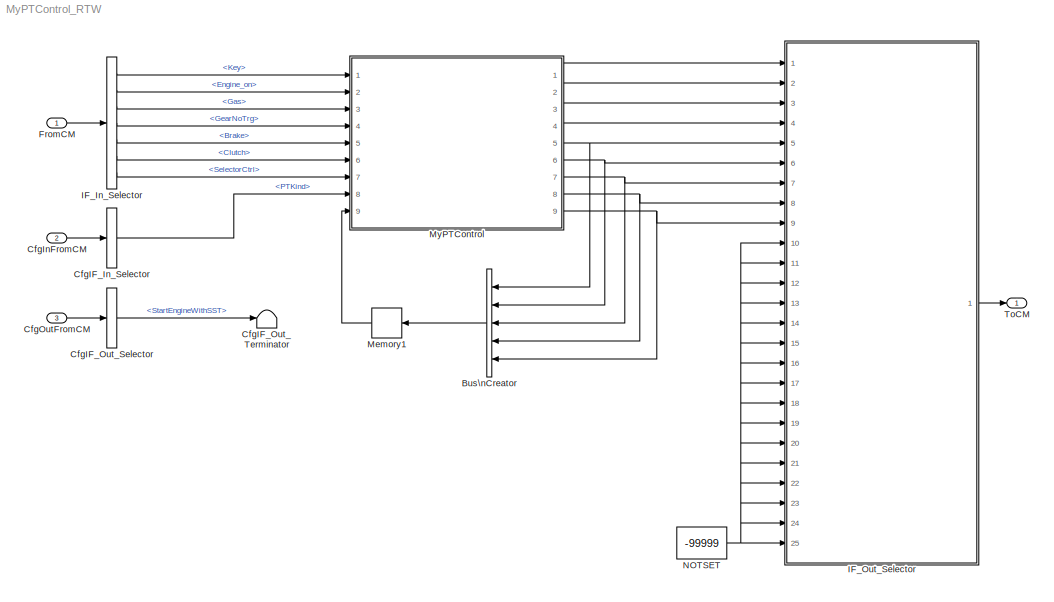
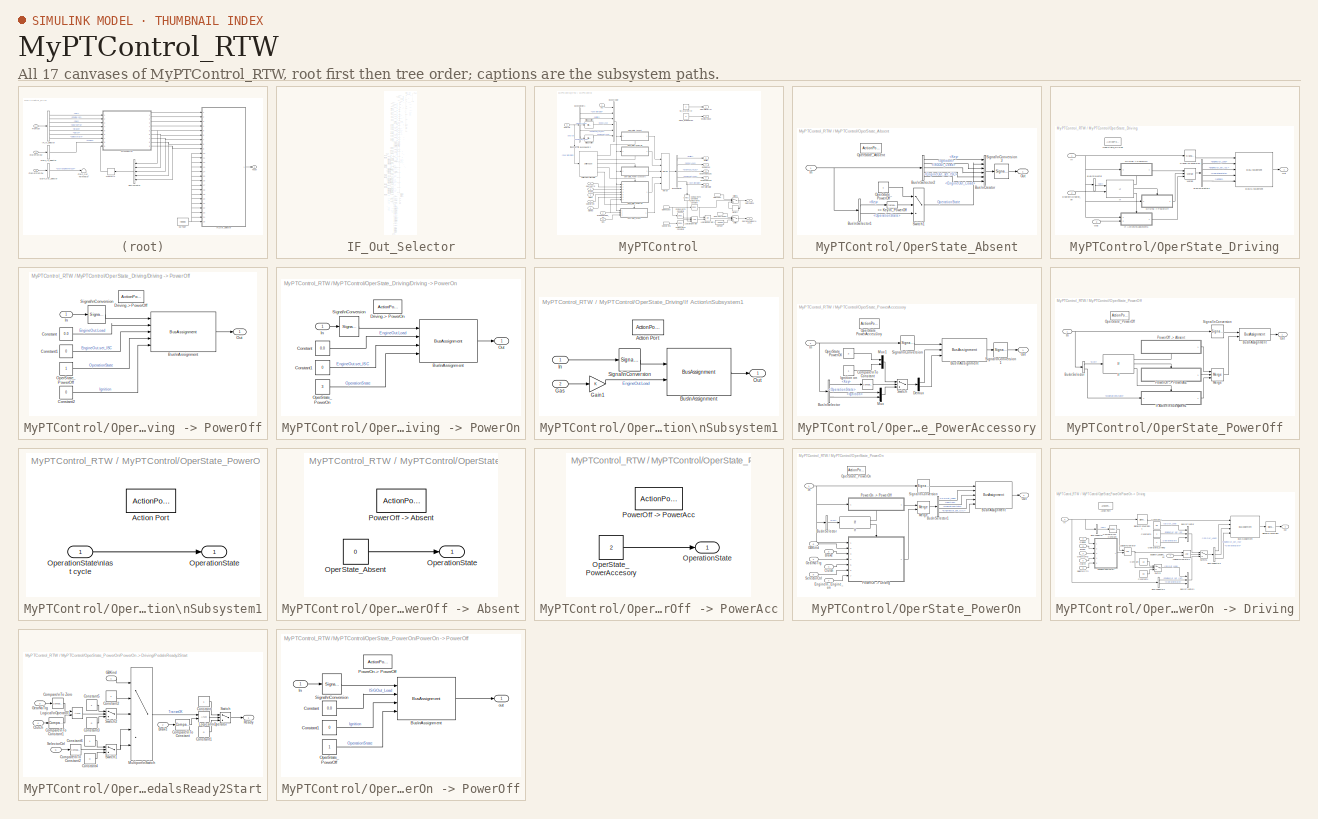
[diagram: thumbnail index - all 17 canvases of the model, root first then tree order]
MODEL MyPTControl_RTW
KIND model
CONFIG InitFcn = vehicle = 'Car'; if ~length(which('cmself')), cmenv; end\nMyPTControl_RTW_bus
CONFIG PreLoadFcn = vehicle = 'Car'; if ~length(which('cmself')), cmenv; end\nMyPTControl_RTW_bus
BLOCK [BusCreator] Bus\nCreator
  DisplayOption = bar
  InheritFromInputs = on
  Inputs = 5
  Ports = [5, 1]
  SID = 258
BLOCK [BusSelector] CfgIF_In_Selector
  OutputSignals = PTKind
  Ports = [1, 1]
  SID = 9
BLOCK [BusSelector] CfgIF_Out_Selector
  OutputSignals = StartEngineWithSST
  Ports = [1, 1]
  SID = 12
BLOCK [Terminator] CfgIF_Out_Terminator
  SID = 13
BLOCK [Inport] CfgInFromCM
  OutDataTypeStr = Bus: cmPTControlCfgIn
  Port = 2
  SID = 8
BLOCK [Inport] CfgOutFromCM
  OutDataTypeStr = Bus: cmPTControlCfgOut
  Port = 3
  SID = 11
BLOCK [Inport] FromCM
  OutDataTypeStr = Bus: cmPTControlIn
  SID = 1
BLOCK [BusSelector] IF_In_Selector
  OutputSignals = Key,EngineIn.Engine_on,Gas,GearNoTrg,Brake,Clutch,SelectorCtrl
  Ports = [1, 7]
  SID = 2
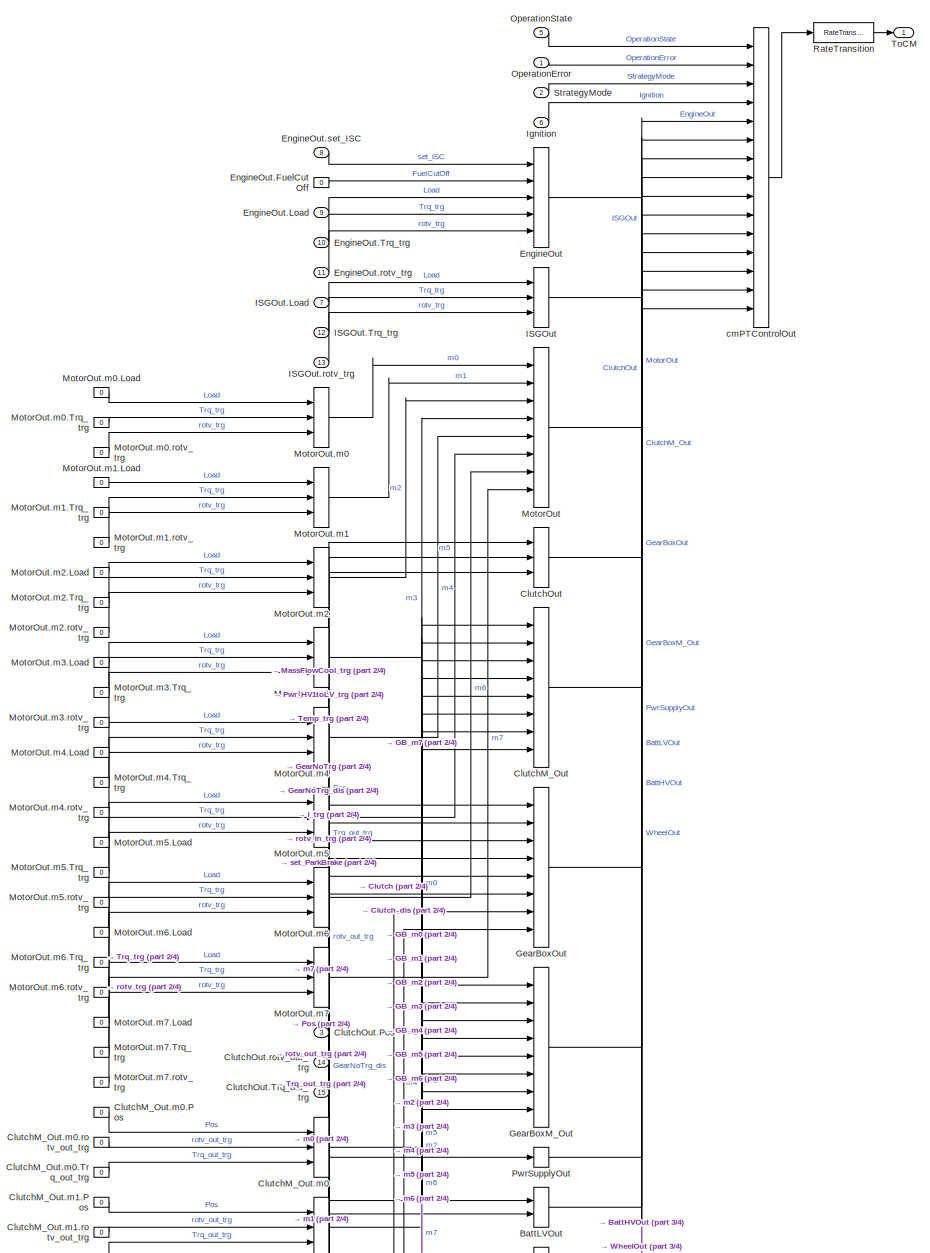
[diagram: IF_Out_Selector - part 1/4, full width, top band]
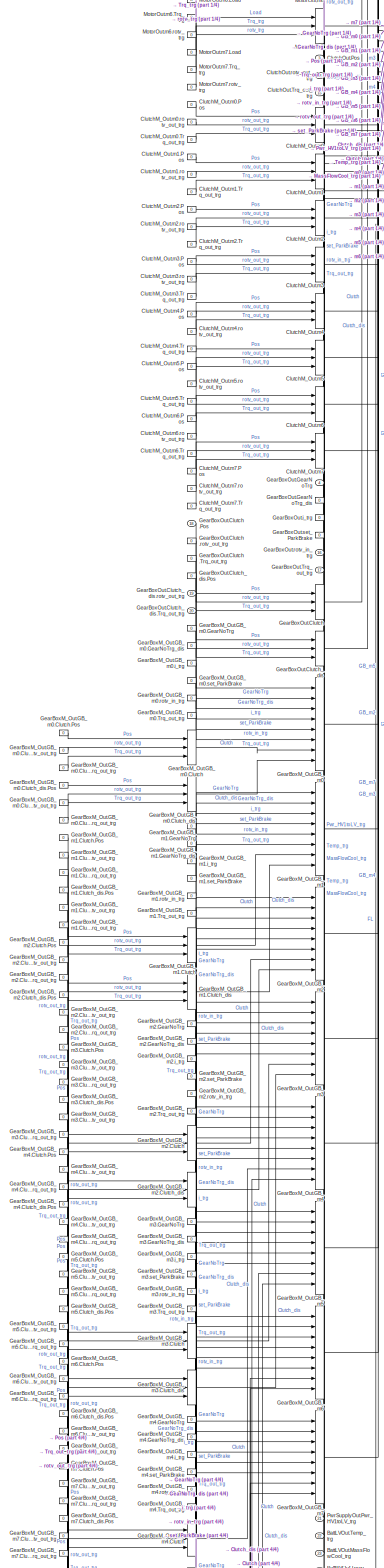
[diagram: IF_Out_Selector - part 2/4, middle left region]
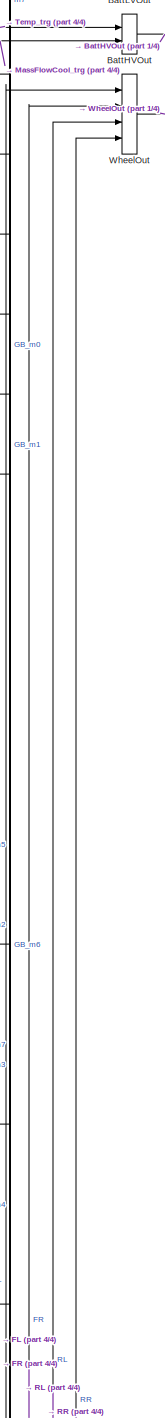
[diagram: IF_Out_Selector - part 3/4, central region]
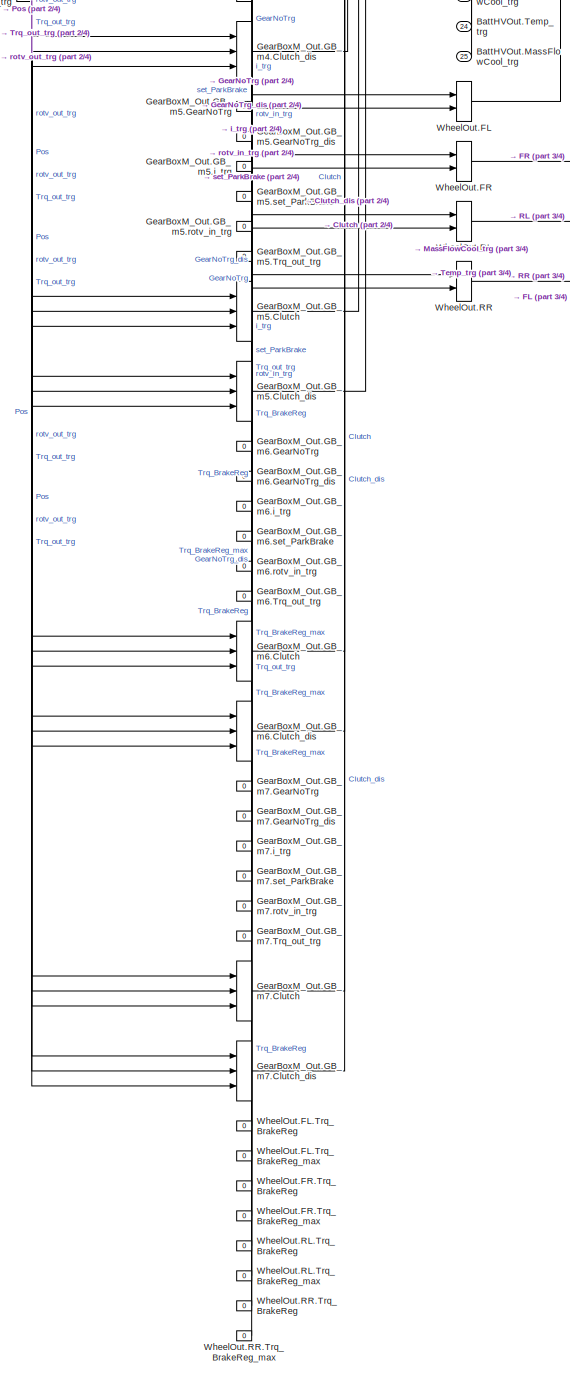
[diagram: IF_Out_Selector - part 4/4, bottom left region]
BLOCK [SubSystem] IF_Out_Selector
  OpenFcn = cmSignalSelect('SignalSelection_CB',gcb)
  Ports = [25, 1]
  RequestExecContextInheritance = off
  SID = 5
  UserData = DataTag0
  UserDataPersistent = on
BLOCK [BusCreator] IF_Out_Selector/BattHVOut
  InheritFromInputs = on
  Inputs = 2
  Ports = [2, 1]
  SID = 240
BLOCK [Inport] IF_Out_Selector/BattHVOut.MassFlowCool_trg
  Port = 25
  SID = 495
BLOCK [Inport] IF_Out_Selector/BattHVOut.Temp_trg
  Port = 24
  SID = 494
BLOCK [BusCreator] IF_Out_Selector/BattLVOut
  InheritFromInputs = on
  Inputs = 2
  Ports = [2, 1]
  SID = 237
BLOCK [Inport] IF_Out_Selector/BattLVOut.MassFlowCool_trg
  Port = 23
  SID = 493
BLOCK [Inport] IF_Out_Selector/BattLVOut.Temp_trg
  Port = 22
  SID = 492
BLOCK [BusCreator] IF_Out_Selector/ClutchM_Out
  InheritFromInputs = on
  Inputs = 8
  Ports = [8, 1]
  SID = 66
BLOCK [BusCreator] IF_Out_Selector/ClutchM_Out.m0
  InheritFromInputs = on
  Inputs = 3
  Ports = [3, 1]
  SID = 67
BLOCK [Constant] IF_Out_Selector/ClutchM_Out.m0.Pos
  SID = 68
  Value = 0
BLOCK [Constant] IF_Out_Selector/ClutchM_Out.m0.Trq_out_trg
  SID = 70
  Value = 0
BLOCK [Constant] IF_Out_Selector/ClutchM_Out.m0.rotv_out_trg
  SID = 69
  Value = 0
BLOCK [BusCreator] IF_Out_Selector/ClutchM_Out.m1
  InheritFromInputs = on
  Inputs = 3
  Ports = [3, 1]
  SID = 71
BLOCK [Constant] IF_Out_Selector/ClutchM_Out.m1.Pos
  SID = 72
  Value = 0
BLOCK [Constant] IF_Out_Selector/ClutchM_Out.m1.Trq_out_trg
  SID = 74
  Value = 0
BLOCK [Constant] IF_Out_Selector/ClutchM_Out.m1.rotv_out_trg
  SID = 73
  Value = 0
BLOCK [BusCreator] IF_Out_Selector/ClutchM_Out.m2
  InheritFromInputs = on
  Inputs = 3
  Ports = [3, 1]
  SID = 75
BLOCK [Constant] IF_Out_Selector/ClutchM_Out.m2.Pos
  SID = 76
  Value = 0
BLOCK [Constant] IF_Out_Selector/ClutchM_Out.m2.Trq_out_trg
  SID = 78
  Value = 0
BLOCK [Constant] IF_Out_Selector/ClutchM_Out.m2.rotv_out_trg
  SID = 77
  Value = 0
BLOCK [BusCreator] IF_Out_Selector/ClutchM_Out.m3
  InheritFromInputs = on
  Inputs = 3
  Ports = [3, 1]
  SID = 79
BLOCK [Constant] IF_Out_Selector/ClutchM_Out.m3.Pos
  SID = 80
  Value = 0
BLOCK [Constant] IF_Out_Selector/ClutchM_Out.m3.Trq_out_trg
  SID = 82
  Value = 0
BLOCK [Constant] IF_Out_Selector/ClutchM_Out.m3.rotv_out_trg
  SID = 81
  Value = 0
BLOCK [BusCreator] IF_Out_Selector/ClutchM_Out.m4
  InheritFromInputs = on
  Inputs = 3
  Ports = [3, 1]
  SID = 83
BLOCK [Constant] IF_Out_Selector/ClutchM_Out.m4.Pos
  SID = 84
  Value = 0
BLOCK [Constant] IF_Out_Selector/ClutchM_Out.m4.Trq_out_trg
  SID = 86
  Value = 0
BLOCK [Constant] IF_Out_Selector/ClutchM_Out.m4.rotv_out_trg
  SID = 85
  Value = 0
BLOCK [BusCreator] IF_Out_Selector/ClutchM_Out.m5
  InheritFromInputs = on
  Inputs = 3
  Ports = [3, 1]
  SID = 87
BLOCK [Constant] IF_Out_Selector/ClutchM_Out.m5.Pos
  SID = 88
  Value = 0
BLOCK [Constant] IF_Out_Selector/ClutchM_Out.m5.Trq_out_trg
  SID = 90
  Value = 0
BLOCK [Constant] IF_Out_Selector/ClutchM_Out.m5.rotv_out_trg
  SID = 89
  Value = 0
BLOCK [BusCreator] IF_Out_Selector/ClutchM_Out.m6
  InheritFromInputs = on
  Inputs = 3
  Ports = [3, 1]
  SID = 91
BLOCK [Constant] IF_Out_Selector/ClutchM_Out.m6.Pos
  SID = 92
  Value = 0
BLOCK [Constant] IF_Out_Selector/ClutchM_Out.m6.Trq_out_trg
  SID = 94
  Value = 0
BLOCK [Constant] IF_Out_Selector/ClutchM_Out.m6.rotv_out_trg
  SID = 93
  Value = 0
BLOCK [BusCreator] IF_Out_Selector/ClutchM_Out.m7
  InheritFromInputs = on
  Inputs = 3
  Ports = [3, 1]
  SID = 95
BLOCK [Constant] IF_Out_Selector/ClutchM_Out.m7.Pos
  SID = 96
  Value = 0
BLOCK [Constant] IF_Out_Selector/ClutchM_Out.m7.Trq_out_trg
  SID = 98
  Value = 0
BLOCK [Constant] IF_Out_Selector/ClutchM_Out.m7.rotv_out_trg
  SID = 97
  Value = 0
BLOCK [BusCreator] IF_Out_Selector/ClutchOut
  InheritFromInputs = on
  Inputs = 3
  Ports = [3, 1]
  SID = 62
BLOCK [Inport] IF_Out_Selector/ClutchOut.Pos
  Port = 3
  SID = 473
BLOCK [Inport] IF_Out_Selector/ClutchOut.Trq_out_trg
  Port = 15
  SID = 485
BLOCK [Inport] IF_Out_Selector/ClutchOut.rotv_out_trg
  Port = 14
  SID = 484
BLOCK [BusCreator] IF_Out_Selector/EngineOut
  InheritFromInputs = on
  Inputs = 5
  Ports = [5, 1]
  SID = 19
BLOCK [Constant] IF_Out_Selector/EngineOut.FuelCutOff
  SID = 21
  Value = 0
BLOCK [Inport] IF_Out_Selector/EngineOut.Load
  Port = 9
  SID = 479
BLOCK [Inport] IF_Out_Selector/EngineOut.Trq_trg
  Port = 10
  SID = 480
BLOCK [Inport] IF_Out_Selector/EngineOut.rotv_trg
  Port = 11
  SID = 481
BLOCK [Inport] IF_Out_Selector/EngineOut.set_ISC
  Port = 8
  SID = 478
BLOCK [BusCreator] IF_Out_Selector/GearBoxM_Out
  InheritFromInputs = on
  Inputs = 8
  Ports = [8, 1]
  SID = 114
BLOCK [BusCreator] IF_Out_Selector/GearBoxM_Out.GB_m0
  InheritFromInputs = on
  Inputs = 8
  Ports = [8, 1]
  SID = 115
BLOCK [BusCreator] IF_Out_Selector/GearBoxM_Out.GB_m0.Clutch
  InheritFromInputs = on
  Inputs = 3
  Ports = [3, 1]
  SID = 122
BLOCK [Constant] IF_Out_Selector/GearBoxM_Out.GB_m0.Clutch.Pos
  SID = 123
  Value = 0
BLOCK [Constant] IF_Out_Selector/GearBoxM_Out.GB_m0.Clutch.Trq_out_trg
  SID = 125
  Value = 0
BLOCK [Constant] IF_Out_Selector/GearBoxM_Out.GB_m0.Clutch.rotv_out_trg
  SID = 124
  Value = 0
BLOCK [BusCreator] IF_Out_Selector/GearBoxM_Out.GB_m0.Clutch_dis
  InheritFromInputs = on
  Inputs = 3
  Ports = [3, 1]
  SID = 126
BLOCK [Constant] IF_Out_Selector/GearBoxM_Out.GB_m0.Clutch_dis.Pos
  SID = 127
  Value = 0
BLOCK [Constant] IF_Out_Selector/GearBoxM_Out.GB_m0.Clutch_dis.Trq_out_trg
  SID = 129
  Value = 0
BLOCK [Constant] IF_Out_Selector/GearBoxM_Out.GB_m0.Clutch_dis.rotv_out_trg
  SID = 128
  Value = 0
BLOCK [Constant] IF_Out_Selector/GearBoxM_Out.GB_m0.GearNoTrg
  SID = 116
  Value = 0
BLOCK [Constant] IF_Out_Selector/GearBoxM_Out.GB_m0.GearNoTrg_dis
  SID = 117
  Value = 0
BLOCK [Constant] IF_Out_Selector/GearBoxM_Out.GB_m0.Trq_out_trg
  SID = 121
  Value = 0
BLOCK [Constant] IF_Out_Selector/GearBoxM_Out.GB_m0.i_trg
  SID = 118
  Value = 0
BLOCK [Constant] IF_Out_Selector/GearBoxM_Out.GB_m0.rotv_in_trg
  SID = 120
  Value = 0
BLOCK [Constant] IF_Out_Selector/GearBoxM_Out.GB_m0.set_ParkBrake
  SID = 119
  Value = 0
BLOCK [BusCreator] IF_Out_Selector/GearBoxM_Out.GB_m1
  InheritFromInputs = on
  Inputs = 8
  Ports = [8, 1]
  SID = 130
BLOCK [BusCreator] IF_Out_Selector/GearBoxM_Out.GB_m1.Clutch
  InheritFromInputs = on
  Inputs = 3
  Ports = [3, 1]
  SID = 137
BLOCK [Constant] IF_Out_Selector/GearBoxM_Out.GB_m1.Clutch.Pos
  SID = 138
  Value = 0
BLOCK [Constant] IF_Out_Selector/GearBoxM_Out.GB_m1.Clutch.Trq_out_trg
  SID = 140
  Value = 0
BLOCK [Constant] IF_Out_Selector/GearBoxM_Out.GB_m1.Clutch.rotv_out_trg
  SID = 139
  Value = 0
BLOCK [BusCreator] IF_Out_Selector/GearBoxM_Out.GB_m1.Clutch_dis
  InheritFromInputs = on
  Inputs = 3
  Ports = [3, 1]
  SID = 141
BLOCK [Constant] IF_Out_Selector/GearBoxM_Out.GB_m1.Clutch_dis.Pos
  SID = 142
  Value = 0
BLOCK [Constant] IF_Out_Selector/GearBoxM_Out.GB_m1.Clutch_dis.Trq_out_trg
  SID = 144
  Value = 0
BLOCK [Constant] IF_Out_Selector/GearBoxM_Out.GB_m1.Clutch_dis.rotv_out_trg
  SID = 143
  Value = 0
BLOCK [Constant] IF_Out_Selector/GearBoxM_Out.GB_m1.GearNoTrg
  SID = 131
  Value = 0
BLOCK [Constant] IF_Out_Selector/GearBoxM_Out.GB_m1.GearNoTrg_dis
  SID = 132
  Value = 0
BLOCK [Constant] IF_Out_Selector/GearBoxM_Out.GB_m1.Trq_out_trg
  SID = 136
  Value = 0
BLOCK [Constant] IF_Out_Selector/GearBoxM_Out.GB_m1.i_trg
  SID = 133
  Value = 0
BLOCK [Constant] IF_Out_Selector/GearBoxM_Out.GB_m1.rotv_in_trg
  SID = 135
  Value = 0
BLOCK [Constant] IF_Out_Selector/GearBoxM_Out.GB_m1.set_ParkBrake
  SID = 134
  Value = 0
BLOCK [BusCreator] IF_Out_Selector/GearBoxM_Out.GB_m2
  InheritFromInputs = on
  Inputs = 8
  Ports = [8, 1]
  SID = 145
BLOCK [BusCreator] IF_Out_Selector/GearBoxM_Out.GB_m2.Clutch
  InheritFromInputs = on
  Inputs = 3
  Ports = [3, 1]
  SID = 152
BLOCK [Constant] IF_Out_Selector/GearBoxM_Out.GB_m2.Clutch.Pos
  SID = 153
  Value = 0
BLOCK [Constant] IF_Out_Selector/GearBoxM_Out.GB_m2.Clutch.Trq_out_trg
  SID = 155
  Value = 0
BLOCK [Constant] IF_Out_Selector/GearBoxM_Out.GB_m2.Clutch.rotv_out_trg
  SID = 154
  Value = 0
BLOCK [BusCreator] IF_Out_Selector/GearBoxM_Out.GB_m2.Clutch_dis
  InheritFromInputs = on
  Inputs = 3
  Ports = [3, 1]
  SID = 156
BLOCK [Constant] IF_Out_Selector/GearBoxM_Out.GB_m2.Clutch_dis.Pos
  SID = 157
  Value = 0
BLOCK [Constant] IF_Out_Selector/GearBoxM_Out.GB_m2.Clutch_dis.Trq_out_trg
  SID = 159
  Value = 0
BLOCK [Constant] IF_Out_Selector/GearBoxM_Out.GB_m2.Clutch_dis.rotv_out_trg
  SID = 158
  Value = 0
BLOCK [Constant] IF_Out_Selector/GearBoxM_Out.GB_m2.GearNoTrg
  SID = 146
  Value = 0
BLOCK [Constant] IF_Out_Selector/GearBoxM_Out.GB_m2.GearNoTrg_dis
  SID = 147
  Value = 0
BLOCK [Constant] IF_Out_Selector/GearBoxM_Out.GB_m2.Trq_out_trg
  SID = 151
  Value = 0
BLOCK [Constant] IF_Out_Selector/GearBoxM_Out.GB_m2.i_trg
  SID = 148
  Value = 0
BLOCK [Constant] IF_Out_Selector/GearBoxM_Out.GB_m2.rotv_in_trg
  SID = 150
  Value = 0
BLOCK [Constant] IF_Out_Selector/GearBoxM_Out.GB_m2.set_ParkBrake
  SID = 149
  Value = 0
BLOCK [BusCreator] IF_Out_Selector/GearBoxM_Out.GB_m3
  InheritFromInputs = on
  Inputs = 8
  Ports = [8, 1]
  SID = 160
BLOCK [BusCreator] IF_Out_Selector/GearBoxM_Out.GB_m3.Clutch
  InheritFromInputs = on
  Inputs = 3
  Ports = [3, 1]
  SID = 167
BLOCK [Constant] IF_Out_Selector/GearBoxM_Out.GB_m3.Clutch.Pos
  SID = 168
  Value = 0
BLOCK [Constant] IF_Out_Selector/GearBoxM_Out.GB_m3.Clutch.Trq_out_trg
  SID = 170
  Value = 0
BLOCK [Constant] IF_Out_Selector/GearBoxM_Out.GB_m3.Clutch.rotv_out_trg
  SID = 169
  Value = 0
BLOCK [BusCreator] IF_Out_Selector/GearBoxM_Out.GB_m3.Clutch_dis
  InheritFromInputs = on
  Inputs = 3
  Ports = [3, 1]
  SID = 171
BLOCK [Constant] IF_Out_Selector/GearBoxM_Out.GB_m3.Clutch_dis.Pos
  SID = 172
  Value = 0
BLOCK [Constant] IF_Out_Selector/GearBoxM_Out.GB_m3.Clutch_dis.Trq_out_trg
  SID = 174
  Value = 0
BLOCK [Constant] IF_Out_Selector/GearBoxM_Out.GB_m3.Clutch_dis.rotv_out_trg
  SID = 173
  Value = 0
BLOCK [Constant] IF_Out_Selector/GearBoxM_Out.GB_m3.GearNoTrg
  SID = 161
  Value = 0
BLOCK [Constant] IF_Out_Selector/GearBoxM_Out.GB_m3.GearNoTrg_dis
  SID = 162
  Value = 0
BLOCK [Constant] IF_Out_Selector/GearBoxM_Out.GB_m3.Trq_out_trg
  SID = 166
  Value = 0
BLOCK [Constant] IF_Out_Selector/GearBoxM_Out.GB_m3.i_trg
  SID = 163
  Value = 0
BLOCK [Constant] IF_Out_Selector/GearBoxM_Out.GB_m3.rotv_in_trg
  SID = 165
  Value = 0
BLOCK [Constant] IF_Out_Selector/GearBoxM_Out.GB_m3.set_ParkBrake
  SID = 164
  Value = 0
BLOCK [BusCreator] IF_Out_Selector/GearBoxM_Out.GB_m4
  InheritFromInputs = on
  Inputs = 8
  Ports = [8, 1]
  SID = 175
BLOCK [BusCreator] IF_Out_Selector/GearBoxM_Out.GB_m4.Clutch
  InheritFromInputs = on
  Inputs = 3
  Ports = [3, 1]
  SID = 182
BLOCK [Constant] IF_Out_Selector/GearBoxM_Out.GB_m4.Clutch.Pos
  SID = 183
  Value = 0
BLOCK [Constant] IF_Out_Selector/GearBoxM_Out.GB_m4.Clutch.Trq_out_trg
  SID = 185
  Value = 0
BLOCK [Constant] IF_Out_Selector/GearBoxM_Out.GB_m4.Clutch.rotv_out_trg
  SID = 184
  Value = 0
BLOCK [BusCreator] IF_Out_Selector/GearBoxM_Out.GB_m4.Clutch_dis
  InheritFromInputs = on
  Inputs = 3
  Ports = [3, 1]
  SID = 186
BLOCK [Constant] IF_Out_Selector/GearBoxM_Out.GB_m4.Clutch_dis.Pos
  SID = 187
  Value = 0
BLOCK [Constant] IF_Out_Selector/GearBoxM_Out.GB_m4.Clutch_dis.Trq_out_trg
  SID = 189
  Value = 0
BLOCK [Constant] IF_Out_Selector/GearBoxM_Out.GB_m4.Clutch_dis.rotv_out_trg
  SID = 188
  Value = 0
BLOCK [Constant] IF_Out_Selector/GearBoxM_Out.GB_m4.GearNoTrg
  SID = 176
  Value = 0
BLOCK [Constant] IF_Out_Selector/GearBoxM_Out.GB_m4.GearNoTrg_dis
  SID = 177
  Value = 0
BLOCK [Constant] IF_Out_Selector/GearBoxM_Out.GB_m4.Trq_out_trg
  SID = 181
  Value = 0
BLOCK [Constant] IF_Out_Selector/GearBoxM_Out.GB_m4.i_trg
  SID = 178
  Value = 0
BLOCK [Constant] IF_Out_Selector/GearBoxM_Out.GB_m4.rotv_in_trg
  SID = 180
  Value = 0
BLOCK [Constant] IF_Out_Selector/GearBoxM_Out.GB_m4.set_ParkBrake
  SID = 179
  Value = 0
BLOCK [BusCreator] IF_Out_Selector/GearBoxM_Out.GB_m5
  InheritFromInputs = on
  Inputs = 8
  Ports = [8, 1]
  SID = 190
BLOCK [BusCreator] IF_Out_Selector/GearBoxM_Out.GB_m5.Clutch
  InheritFromInputs = on
  Inputs = 3
  Ports = [3, 1]
  SID = 197
BLOCK [Constant] IF_Out_Selector/GearBoxM_Out.GB_m5.Clutch.Pos
  SID = 198
  Value = 0
BLOCK [Constant] IF_Out_Selector/GearBoxM_Out.GB_m5.Clutch.Trq_out_trg
  SID = 200
  Value = 0
BLOCK [Constant] IF_Out_Selector/GearBoxM_Out.GB_m5.Clutch.rotv_out_trg
  SID = 199
  Value = 0
BLOCK [BusCreator] IF_Out_Selector/GearBoxM_Out.GB_m5.Clutch_dis
  InheritFromInputs = on
  Inputs = 3
  Ports = [3, 1]
  SID = 201
BLOCK [Constant] IF_Out_Selector/GearBoxM_Out.GB_m5.Clutch_dis.Pos
  SID = 202
  Value = 0
BLOCK [Constant] IF_Out_Selector/GearBoxM_Out.GB_m5.Clutch_dis.Trq_out_trg
  SID = 204
  Value = 0
BLOCK [Constant] IF_Out_Selector/GearBoxM_Out.GB_m5.Clutch_dis.rotv_out_trg
  SID = 203
  Value = 0
BLOCK [Constant] IF_Out_Selector/GearBoxM_Out.GB_m5.GearNoTrg
  SID = 191
  Value = 0
BLOCK [Constant] IF_Out_Selector/GearBoxM_Out.GB_m5.GearNoTrg_dis
  SID = 192
  Value = 0
BLOCK [Constant] IF_Out_Selector/GearBoxM_Out.GB_m5.Trq_out_trg
  SID = 196
  Value = 0
BLOCK [Constant] IF_Out_Selector/GearBoxM_Out.GB_m5.i_trg
  SID = 193
  Value = 0
BLOCK [Constant] IF_Out_Selector/GearBoxM_Out.GB_m5.rotv_in_trg
  SID = 195
  Value = 0
BLOCK [Constant] IF_Out_Selector/GearBoxM_Out.GB_m5.set_ParkBrake
  SID = 194
  Value = 0
BLOCK [BusCreator] IF_Out_Selector/GearBoxM_Out.GB_m6
  InheritFromInputs = on
  Inputs = 8
  Ports = [8, 1]
  SID = 205
BLOCK [BusCreator] IF_Out_Selector/GearBoxM_Out.GB_m6.Clutch
  InheritFromInputs = on
  Inputs = 3
  Ports = [3, 1]
  SID = 212
BLOCK [Constant] IF_Out_Selector/GearBoxM_Out.GB_m6.Clutch.Pos
  SID = 213
  Value = 0
BLOCK [Constant] IF_Out_Selector/GearBoxM_Out.GB_m6.Clutch.Trq_out_trg
  SID = 215
  Value = 0
BLOCK [Constant] IF_Out_Selector/GearBoxM_Out.GB_m6.Clutch.rotv_out_trg
  SID = 214
  Value = 0
BLOCK [BusCreator] IF_Out_Selector/GearBoxM_Out.GB_m6.Clutch_dis
  InheritFromInputs = on
  Inputs = 3
  Ports = [3, 1]
  SID = 216
BLOCK [Constant] IF_Out_Selector/GearBoxM_Out.GB_m6.Clutch_dis.Pos
  SID = 217
  Value = 0
BLOCK [Constant] IF_Out_Selector/GearBoxM_Out.GB_m6.Clutch_dis.Trq_out_trg
  SID = 219
  Value = 0
BLOCK [Constant] IF_Out_Selector/GearBoxM_Out.GB_m6.Clutch_dis.rotv_out_trg
  SID = 218
  Value = 0
BLOCK [Constant] IF_Out_Selector/GearBoxM_Out.GB_m6.GearNoTrg
  SID = 206
  Value = 0
BLOCK [Constant] IF_Out_Selector/GearBoxM_Out.GB_m6.GearNoTrg_dis
  SID = 207
  Value = 0
BLOCK [Constant] IF_Out_Selector/GearBoxM_Out.GB_m6.Trq_out_trg
  SID = 211
  Value = 0
BLOCK [Constant] IF_Out_Selector/GearBoxM_Out.GB_m6.i_trg
  SID = 208
  Value = 0
BLOCK [Constant] IF_Out_Selector/GearBoxM_Out.GB_m6.rotv_in_trg
  SID = 210
  Value = 0
BLOCK [Constant] IF_Out_Selector/GearBoxM_Out.GB_m6.set_ParkBrake
  SID = 209
  Value = 0
BLOCK [BusCreator] IF_Out_Selector/GearBoxM_Out.GB_m7
  InheritFromInputs = on
  Inputs = 8
  Ports = [8, 1]
  SID = 220
BLOCK [BusCreator] IF_Out_Selector/GearBoxM_Out.GB_m7.Clutch
  InheritFromInputs = on
  Inputs = 3
  Ports = [3, 1]
  SID = 227
BLOCK [Constant] IF_Out_Selector/GearBoxM_Out.GB_m7.Clutch.Pos
  SID = 228
  Value = 0
BLOCK [Constant] IF_Out_Selector/GearBoxM_Out.GB_m7.Clutch.Trq_out_trg
  SID = 230
  Value = 0
BLOCK [Constant] IF_Out_Selector/GearBoxM_Out.GB_m7.Clutch.rotv_out_trg
  SID = 229
  Value = 0
BLOCK [BusCreator] IF_Out_Selector/GearBoxM_Out.GB_m7.Clutch_dis
  InheritFromInputs = on
  Inputs = 3
  Ports = [3, 1]
  SID = 231
BLOCK [Constant] IF_Out_Selector/GearBoxM_Out.GB_m7.Clutch_dis.Pos
  SID = 232
  Value = 0
BLOCK [Constant] IF_Out_Selector/GearBoxM_Out.GB_m7.Clutch_dis.Trq_out_trg
  SID = 234
  Value = 0
BLOCK [Constant] IF_Out_Selector/GearBoxM_Out.GB_m7.Clutch_dis.rotv_out_trg
  SID = 233
  Value = 0
BLOCK [Constant] IF_Out_Selector/GearBoxM_Out.GB_m7.GearNoTrg
  SID = 221
  Value = 0
BLOCK [Constant] IF_Out_Selector/GearBoxM_Out.GB_m7.GearNoTrg_dis
  SID = 222
  Value = 0
BLOCK [Constant] IF_Out_Selector/GearBoxM_Out.GB_m7.Trq_out_trg
  SID = 226
  Value = 0
BLOCK [Constant] IF_Out_Selector/GearBoxM_Out.GB_m7.i_trg
  SID = 223
  Value = 0
BLOCK [Constant] IF_Out_Selector/GearBoxM_Out.GB_m7.rotv_in_trg
  SID = 225
  Value = 0
BLOCK [Constant] IF_Out_Selector/GearBoxM_Out.GB_m7.set_ParkBrake
  SID = 224
  Value = 0
BLOCK [BusCreator] IF_Out_Selector/GearBoxOut
  InheritFromInputs = on
  Inputs = 8
  Ports = [8, 1]
  SID = 99
BLOCK [BusCreator] IF_Out_Selector/GearBoxOut.Clutch
  InheritFromInputs = on
  Inputs = 3
  Ports = [3, 1]
  SID = 106
BLOCK [Inport] IF_Out_Selector/GearBoxOut.Clutch.Pos
  Port = 18
  SID = 488
BLOCK [Constant] IF_Out_Selector/GearBoxOut.Clutch.Trq_out_trg
  SID = 109
  Value = 0
BLOCK [Constant] IF_Out_Selector/GearBoxOut.Clutch.rotv_out_trg
  SID = 108
  Value = 0
BLOCK [BusCreator] IF_Out_Selector/GearBoxOut.Clutch_dis
  InheritFromInputs = on
  Inputs = 3
  Ports = [3, 1]
  SID = 110
BLOCK [Constant] IF_Out_Selector/GearBoxOut.Clutch_dis.Pos
  SID = 111
  Value = 0
BLOCK [Inport] IF_Out_Selector/GearBoxOut.Clutch_dis.Trq_out_trg
  Port = 20
  SID = 490
BLOCK [Inport] IF_Out_Selector/GearBoxOut.Clutch_dis.rotv_out_trg
  Port = 19
  SID = 489
BLOCK [Inport] IF_Out_Selector/GearBoxOut.GearNoTrg
  Port = 4
  SID = 474
BLOCK [Constant] IF_Out_Selector/GearBoxOut.GearNoTrg_dis
  SID = 101
  Value = 0
BLOCK [Inport] IF_Out_Selector/GearBoxOut.Trq_out_trg
  Port = 17
  SID = 487
BLOCK [Constant] IF_Out_Selector/GearBoxOut.i_trg
  SID = 102
  Value = 0
BLOCK [Inport] IF_Out_Selector/GearBoxOut.rotv_in_trg
  Port = 16
  SID = 486
BLOCK [Constant] IF_Out_Selector/GearBoxOut.set_ParkBrake
  SID = 103
  Value = 0
BLOCK [BusCreator] IF_Out_Selector/ISGOut
  InheritFromInputs = on
  Inputs = 3
  Ports = [3, 1]
  SID = 25
BLOCK [Inport] IF_Out_Selector/ISGOut.Load
  Port = 7
  SID = 477
BLOCK [Inport] IF_Out_Selector/ISGOut.Trq_trg
  Port = 12
  SID = 482
BLOCK [Inport] IF_Out_Selector/ISGOut.rotv_trg
  Port = 13
  SID = 483
BLOCK [Inport] IF_Out_Selector/Ignition
  Port = 6
  SID = 476
BLOCK [BusCreator] IF_Out_Selector/MotorOut
  InheritFromInputs = on
  Inputs = 8
  Ports = [8, 1]
  SID = 29
BLOCK [BusCreator] IF_Out_Selector/MotorOut.m0
  InheritFromInputs = on
  Inputs = 3
  Ports = [3, 1]
  SID = 30
BLOCK [Constant] IF_Out_Selector/MotorOut.m0.Load
  SID = 31
  Value = 0
BLOCK [Constant] IF_Out_Selector/MotorOut.m0.Trq_trg
  SID = 32
  Value = 0
BLOCK [Constant] IF_Out_Selector/MotorOut.m0.rotv_trg
  SID = 33
  Value = 0
BLOCK [BusCreator] IF_Out_Selector/MotorOut.m1
  InheritFromInputs = on
  Inputs = 3
  Ports = [3, 1]
  SID = 34
BLOCK [Constant] IF_Out_Selector/MotorOut.m1.Load
  SID = 35
  Value = 0
BLOCK [Constant] IF_Out_Selector/MotorOut.m1.Trq_trg
  SID = 36
  Value = 0
BLOCK [Constant] IF_Out_Selector/MotorOut.m1.rotv_trg
  SID = 37
  Value = 0
BLOCK [BusCreator] IF_Out_Selector/MotorOut.m2
  InheritFromInputs = on
  Inputs = 3
  Ports = [3, 1]
  SID = 38
BLOCK [Constant] IF_Out_Selector/MotorOut.m2.Load
  SID = 39
  Value = 0
BLOCK [Constant] IF_Out_Selector/MotorOut.m2.Trq_trg
  SID = 40
  Value = 0
BLOCK [Constant] IF_Out_Selector/MotorOut.m2.rotv_trg
  SID = 41
  Value = 0
BLOCK [BusCreator] IF_Out_Selector/MotorOut.m3
  InheritFromInputs = on
  Inputs = 3
  Ports = [3, 1]
  SID = 42
BLOCK [Constant] IF_Out_Selector/MotorOut.m3.Load
  SID = 43
  Value = 0
BLOCK [Constant] IF_Out_Selector/MotorOut.m3.Trq_trg
  SID = 44
  Value = 0
BLOCK [Constant] IF_Out_Selector/MotorOut.m3.rotv_trg
  SID = 45
  Value = 0
BLOCK [BusCreator] IF_Out_Selector/MotorOut.m4
  InheritFromInputs = on
  Inputs = 3
  Ports = [3, 1]
  SID = 46
BLOCK [Constant] IF_Out_Selector/MotorOut.m4.Load
  SID = 47
  Value = 0
BLOCK [Constant] IF_Out_Selector/MotorOut.m4.Trq_trg
  SID = 48
  Value = 0
BLOCK [Constant] IF_Out_Selector/MotorOut.m4.rotv_trg
  SID = 49
  Value = 0
BLOCK [BusCreator] IF_Out_Selector/MotorOut.m5
  InheritFromInputs = on
  Inputs = 3
  Ports = [3, 1]
  SID = 50
BLOCK [Constant] IF_Out_Selector/MotorOut.m5.Load
  SID = 51
  Value = 0
BLOCK [Constant] IF_Out_Selector/MotorOut.m5.Trq_trg
  SID = 52
  Value = 0
BLOCK [Constant] IF_Out_Selector/MotorOut.m5.rotv_trg
  SID = 53
  Value = 0
BLOCK [BusCreator] IF_Out_Selector/MotorOut.m6
  InheritFromInputs = on
  Inputs = 3
  Ports = [3, 1]
  SID = 54
BLOCK [Constant] IF_Out_Selector/MotorOut.m6.Load
  SID = 55
  Value = 0
BLOCK [Constant] IF_Out_Selector/MotorOut.m6.Trq_trg
  SID = 56
  Value = 0
BLOCK [Constant] IF_Out_Selector/MotorOut.m6.rotv_trg
  SID = 57
  Value = 0
BLOCK [BusCreator] IF_Out_Selector/MotorOut.m7
  InheritFromInputs = on
  Inputs = 3
  Ports = [3, 1]
  SID = 58
BLOCK [Constant] IF_Out_Selector/MotorOut.m7.Load
  SID = 59
  Value = 0
BLOCK [Constant] IF_Out_Selector/MotorOut.m7.Trq_trg
  SID = 60
  Value = 0
BLOCK [Constant] IF_Out_Selector/MotorOut.m7.rotv_trg
  SID = 61
  Value = 0
BLOCK [Inport] IF_Out_Selector/OperationError
  SID = 471
BLOCK [Inport] IF_Out_Selector/OperationState
  Port = 5
  SID = 475
BLOCK [BusCreator] IF_Out_Selector/PwrSupplyOut
  InheritFromInputs = on
  Inputs = 1
  Ports = [1, 1]
  SID = 235
BLOCK [Inport] IF_Out_Selector/PwrSupplyOut.Pwr_HV1toLV_trg
  Port = 21
  SID = 491
BLOCK [RateTransition] IF_Out_Selector/RateTransition
  OutPortSampleTime = str2num(get_param(bdroot,'FixedStep'))
  SID = 6
BLOCK [Inport] IF_Out_Selector/StrategyMode
  Port = 2
  SID = 472
BLOCK [Outport] IF_Out_Selector/ToCM
  SID = 7
BLOCK [BusCreator] IF_Out_Selector/WheelOut
  InheritFromInputs = on
  Inputs = 4
  Ports = [4, 1]
  SID = 243
BLOCK [BusCreator] IF_Out_Selector/WheelOut.FL
  InheritFromInputs = on
  Inputs = 2
  Ports = [2, 1]
  SID = 244
BLOCK [Constant] IF_Out_Selector/WheelOut.FL.Trq_BrakeReg
  SID = 245
  Value = 0
BLOCK [Constant] IF_Out_Selector/WheelOut.FL.Trq_BrakeReg_max
  SID = 246
  Value = 0
BLOCK [BusCreator] IF_Out_Selector/WheelOut.FR
  InheritFromInputs = on
  Inputs = 2
  Ports = [2, 1]
  SID = 247
BLOCK [Constant] IF_Out_Selector/WheelOut.FR.Trq_BrakeReg
  SID = 248
  Value = 0
BLOCK [Constant] IF_Out_Selector/WheelOut.FR.Trq_BrakeReg_max
  SID = 249
  Value = 0
BLOCK [BusCreator] IF_Out_Selector/WheelOut.RL
  InheritFromInputs = on
  Inputs = 2
  Ports = [2, 1]
  SID = 250
BLOCK [Constant] IF_Out_Selector/WheelOut.RL.Trq_BrakeReg
  SID = 251
  Value = 0
BLOCK [Constant] IF_Out_Selector/WheelOut.RL.Trq_BrakeReg_max
  SID = 252
  Value = 0
BLOCK [BusCreator] IF_Out_Selector/WheelOut.RR
  InheritFromInputs = on
  Inputs = 2
  Ports = [2, 1]
  SID = 253
BLOCK [Constant] IF_Out_Selector/WheelOut.RR.Trq_BrakeReg
  SID = 254
  Value = 0
BLOCK [Constant] IF_Out_Selector/WheelOut.RR.Trq_BrakeReg_max
  SID = 255
  Value = 0
BLOCK [BusCreator] IF_Out_Selector/cmPTControlOut
  InheritFromInputs = on
  Inputs = 15
  Ports = [15, 1]
  SID = 14
BLOCK [Memory] Memory1
  SID = 263
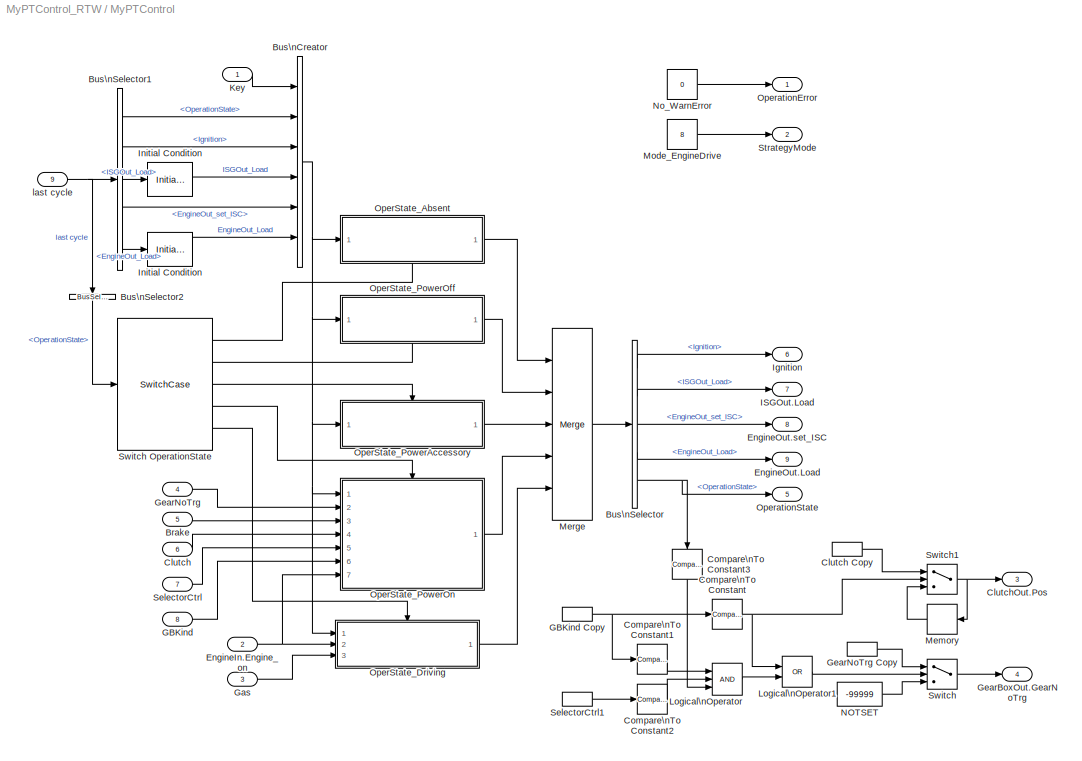
BLOCK [SubSystem] MyPTControl
  Ports = [9, 9]
  RequestExecContextInheritance = off
  SID = 264
BLOCK [Inport] MyPTControl/Brake
  Port = 5
  SID = 269
BLOCK [BusCreator] MyPTControl/Bus\nCreator
  DisplayOption = bar
  InheritFromInputs = on
  Inputs = 6
  Ports = [6, 1]
  SID = 274
BLOCK [BusSelector] MyPTControl/Bus\nSelector
  OutputSignals = Ignition,ISGOut_Load,EngineOut_set_ISC,EngineOut_Load,OperationState
  Ports = [1, 5]
  SID = 275
BLOCK [BusSelector] MyPTControl/Bus\nSelector1
  OutputSignals = OperationState,Ignition,ISGOut_Load,EngineOut_set_ISC,EngineOut_Load
  Ports = [1, 5]
  SID = 276
BLOCK [BusSelector] MyPTControl/Bus\nSelector2
  NameLocation = left
  OutputSignals = OperationState
  Ports = [1, 1]
  SID = 277
BLOCK [Inport] MyPTControl/Clutch
  Port = 6
  SID = 270
BLOCK [InportShadow] MyPTControl/Clutch Copy
  Port = 6
  SID = 278
BLOCK [Outport] MyPTControl/ClutchOut.Pos
  Port = 3
  SID = 463
  VectorParamsAs1DForOutWhenUnconnected = off
BLOCK [Reference] MyPTControl/Compare\nTo Constant  REF=simulink/Logic and Bit\nOperations/Compare\nTo Constant
  OutDataTypeStr = uint8
  Ports = [1, 1]
  RTWMemSecDataConstants = Inherit from model
  RTWMemSecDataInternal = Inherit from model
  RTWMemSecDataParameters = Inherit from model
  RTWMemSecFuncExecute = Inherit from model
  RTWMemSecFuncInitTerm = Inherit from model
  SID = 279
  SourceBlock = simulink/Logic and Bit\nOperations/Compare\nTo Constant
  SourceProductBaseCode = SL
  SourceType = Compare To Constant
  ZeroCross = off
  const = 1
  relop = ==
BLOCK [Reference] MyPTControl/Compare\nTo Constant1  REF=simulink/Logic and Bit\nOperations/Compare\nTo Constant
  OutDataTypeStr = uint8
  Ports = [1, 1]
  RTWMemSecDataConstants = Inherit from model
  RTWMemSecDataInternal = Inherit from model
  RTWMemSecDataParameters = Inherit from model
  RTWMemSecFuncExecute = Inherit from model
  RTWMemSecFuncInitTerm = Inherit from model
  SID = 280
  SourceBlock = simulink/Logic and Bit\nOperations/Compare\nTo Constant
  SourceProductBaseCode = SL
  SourceType = Compare To Constant
  ZeroCross = off
  const = 2
  relop = ==
BLOCK [Reference] MyPTControl/Compare\nTo Constant2  REF=simulink/Logic and Bit\nOperations/Compare\nTo Constant
  OutDataTypeStr = uint8
  Ports = [1, 1]
  RTWMemSecDataConstants = Inherit from model
  RTWMemSecDataInternal = Inherit from model
  RTWMemSecDataParameters = Inherit from model
  RTWMemSecFuncExecute = Inherit from model
  RTWMemSecFuncInitTerm = Inherit from model
  SID = 281
  SourceBlock = simulink/Logic and Bit\nOperations/Compare\nTo Constant
  SourceProductBaseCode = SL
  SourceType = Compare To Constant
  ZeroCross = off
  const = 2
  relop = ==
BLOCK [Reference] MyPTControl/Compare\nTo Constant3  REF=simulink/Logic and Bit\nOperations/Compare\nTo Constant
  NameLocation = left
  OutDataTypeStr = uint8
  Ports = [1, 1]
  RTWMemSecDataConstants = Inherit from model
  RTWMemSecDataInternal = Inherit from model
  RTWMemSecDataParameters = Inherit from model
  RTWMemSecFuncExecute = Inherit from model
  RTWMemSecFuncInitTerm = Inherit from model
  SID = 282
  SourceBlock = simulink/Logic and Bit\nOperations/Compare\nTo Constant
  SourceProductBaseCode = SL
  SourceType = Compare To Constant
  ZeroCross = off
  const = 4
  relop = ==
BLOCK [Inport] MyPTControl/EngineIn.Engine_on
  Port = 2
  SID = 266
BLOCK [Outport] MyPTControl/EngineOut.Load
  Port = 9
  SID = 469
  VectorParamsAs1DForOutWhenUnconnected = off
BLOCK [Outport] MyPTControl/EngineOut.set_ISC
  Port = 8
  SID = 468
  VectorParamsAs1DForOutWhenUnconnected = off
BLOCK [Inport] MyPTControl/GBKind
  Port = 8
  SID = 272
BLOCK [InportShadow] MyPTControl/GBKind Copy
  Port = 8
  SID = 283
BLOCK [Inport] MyPTControl/Gas
  Port = 3
  SID = 267
BLOCK [Outport] MyPTControl/GearBoxOut.GearNoTrg
  Port = 4
  SID = 464
  VectorParamsAs1DForOutWhenUnconnected = off
BLOCK [Inport] MyPTControl/GearNoTrg
  Port = 4
  SID = 268
BLOCK [InportShadow] MyPTControl/GearNoTrg Copy
  Port = 4
  SID = 284
BLOCK [Outport] MyPTControl/ISGOut.Load
  Port = 7
  SID = 467
  VectorParamsAs1DForOutWhenUnconnected = off
BLOCK [Outport] MyPTControl/Ignition
  Port = 6
  SID = 466
  VectorParamsAs1DForOutWhenUnconnected = off
BLOCK [InitialCondition] MyPTControl/Initial Condition
  SID = 285
  Value = 0
BLOCK [InitialCondition] MyPTControl/Initial Condition 
  SID = 286
  Value = 0
BLOCK [Inport] MyPTControl/Key
  SID = 265
BLOCK [Logic] MyPTControl/Logical\nOperator
  AllPortsSameDT = off
  Inputs = 3
  OutDataTypeStr = boolean
  Ports = [3, 1]
  SID = 287
BLOCK [Logic] MyPTControl/Logical\nOperator1
  AllPortsSameDT = off
  Operator = OR
  OutDataTypeStr = boolean
  Ports = [2, 1]
  SID = 288
BLOCK [Memory] MyPTControl/Memory
  SID = 289
BLOCK [Merge] MyPTControl/Merge
  Inputs = 5
  Ports = [5, 1]
  SID = 290
BLOCK [Constant] MyPTControl/Mode_EngineDrive
  SID = 291
  Value = 8
BLOCK [Constant] MyPTControl/NOTSET
  SID = 292
  Value = -99999
BLOCK [Constant] MyPTControl/No_WarnError
  SID = 293
  Value = 0
BLOCK [SubSystem] MyPTControl/OperState_Absent
  NameLocation = top
  Ports = [1, 1, 0, 0, 0, 0, 0, 1]
  RequestExecContextInheritance = off
  SID = 294
  TreatAsAtomicUnit = on
BLOCK [Reference] MyPTControl/OperState_Absent/>= KeyIn_PowerOff  REF=simulink/Logic and Bit\nOperations/Compare\nTo Constant
  OutDataTypeStr = uint8
  Ports = [1, 1]
  RTWMemSecDataConstants = Inherit from model
  RTWMemSecDataInternal = Inherit from model
  RTWMemSecDataParameters = Inherit from model
  RTWMemSecFuncExecute = Inherit from model
  RTWMemSecFuncInitTerm = Inherit from model
  SID = 297
  SourceBlock = simulink/Logic and Bit\nOperations/Compare\nTo Constant
  SourceProductBaseCode = SL
  SourceType = Compare To Constant
  ZeroCross = off
  const = 1
  relop = >=
BLOCK [BusCreator] MyPTControl/OperState_Absent/Bus\nCreator
  DisplayOption = bar
  InheritFromInputs = on
  Inputs = 6
  Ports = [6, 1]
  SID = 298
BLOCK [BusSelector] MyPTControl/OperState_Absent/Bus\nSelector1
  OutputSignals = Key,OperationState
  Ports = [1, 2]
  SID = 299
BLOCK [BusSelector] MyPTControl/OperState_Absent/Bus\nSelector2
  OutputSignals = Key,Ignition,ISGOut_Load,EngineOut_set_ISC,EngineOut_Load
  Ports = [1, 5]
  SID = 300
BLOCK [Inport] MyPTControl/OperState_Absent/In
  SID = 295
BLOCK [ActionPort] MyPTControl/OperState_Absent/OperState_Absent
  ActionPortLabel = case [ 0 ]:
  SID = 296
BLOCK [Constant] MyPTControl/OperState_Absent/OperState_PowerOff
  SID = 301
BLOCK [Outport] MyPTControl/OperState_Absent/Out
  SID = 304
  VectorParamsAs1DForOutWhenUnconnected = off
BLOCK [SignalConversion] MyPTControl/OperState_Absent/Signal\nConversion3
  ConversionOutput = Bus copy
  OverrideOpt = off
  SID = 302
BLOCK [Switch] MyPTControl/OperState_Absent/Switch1
  Criteria = u2 ~= 0
  InputSameDT = off
  SID = 303
  SaturateOnIntegerOverflow = off
  Threshold = 1
BLOCK [SubSystem] MyPTControl/OperState_Driving
  Ports = [3, 1, 0, 0, 0, 0, 0, 1]
  RequestExecContextInheritance = off
  SID = 305
  TreatAsAtomicUnit = on
BLOCK [BusAssignment] MyPTControl/OperState_Driving/Bus\nAssignment
  AssignedSignals = EngineOut_Load,EngineOut_set_ISC,OperationState,Ignition
  Ports = [5, 1]
  SID = 310
BLOCK [BusSelector] MyPTControl/OperState_Driving/Bus\nSelector
  OutputSignals = Key
  Ports = [1, 1]
  SID = 311
BLOCK [BusSelector] MyPTControl/OperState_Driving/Bus\nSelector1
  OutputSignals = EngineOut_Load,EngineOut_set_ISC,OperationState,Ignition
  Ports = [1, 4]
  SID = 312
BLOCK [SubSystem] MyPTControl/OperState_Driving/Driving -> PowerOff
  Ports = [1, 1, 0, 0, 0, 0, 0, 1]
  RequestExecContextInheritance = off
  SID = 313
  TreatAsAtomicUnit = on
BLOCK [BusAssignment] MyPTControl/OperState_Driving/Driving -> PowerOff/Bus\nAssignment
  AssignedSignals = EngineOut_Load,EngineOut_set_ISC,Ignition,OperationState
  Ports = [5, 1]
  SID = 316
BLOCK [Constant] MyPTControl/OperState_Driving/Driving -> PowerOff/Constant
  SID = 317
  Value = 0.0
BLOCK [Constant] MyPTControl/OperState_Driving/Driving -> PowerOff/Constant1
  SID = 318
  Value = 0
BLOCK [Constant] MyPTControl/OperState_Driving/Driving -> PowerOff/Constant2
  SID = 319
  Value = 0
BLOCK [ActionPort] MyPTControl/OperState_Driving/Driving -> PowerOff/Driving -> PowerOff
  ActionPortLabel = elseif(u1<=1)
  SID = 315
BLOCK [Inport] MyPTControl/OperState_Driving/Driving -> PowerOff/In
  SID = 314
BLOCK [Constant] MyPTControl/OperState_Driving/Driving -> PowerOff/OperState_PowerOff
  SID = 320
BLOCK [Outport] MyPTControl/OperState_Driving/Driving -> PowerOff/Out
  SID = 322
  VectorParamsAs1DForOutWhenUnconnected = off
BLOCK [SignalConversion] MyPTControl/OperState_Driving/Driving -> PowerOff/Signal\nConversion
  ConversionOutput = Bus copy
  OverrideOpt = off
  SID = 321
BLOCK [SubSystem] MyPTControl/OperState_Driving/Driving -> PowerOn
  NameLocation = top
  Ports = [1, 1, 0, 0, 0, 0, 0, 1]
  RequestExecContextInheritance = off
  SID = 323
  TreatAsAtomicUnit = on
BLOCK [BusAssignment] MyPTControl/OperState_Driving/Driving -> PowerOn/Bus\nAssignment
  AssignedSignals = EngineOut_Load,EngineOut_set_ISC,OperationState
  Ports = [4, 1]
  SID = 326
BLOCK [Constant] MyPTControl/OperState_Driving/Driving -> PowerOn/Constant
  SID = 327
  Value = 0.0
BLOCK [Constant] MyPTControl/OperState_Driving/Driving -> PowerOn/Constant1
  SID = 328
  Value = 0
BLOCK [ActionPort] MyPTControl/OperState_Driving/Driving -> PowerOn/Driving -> PowerOn
  ActionPortLabel = if(~u2)
  SID = 325
BLOCK [Inport] MyPTControl/OperState_Driving/Driving -> PowerOn/In
  SID = 324
BLOCK [Constant] MyPTControl/OperState_Driving/Driving -> PowerOn/OperState_PowerOn
  SID = 329
  Value = 3
BLOCK [Outport] MyPTControl/OperState_Driving/Driving -> PowerOn/Out
  SID = 331
  VectorParamsAs1DForOutWhenUnconnected = off
BLOCK [SignalConversion] MyPTControl/OperState_Driving/Driving -> PowerOn/Signal\nConversion
  ConversionOutput = Bus copy
  OverrideOpt = off
  SID = 330
BLOCK [Inport] MyPTControl/OperState_Driving/EngineIn.Engine_on
  Port = 2
  SID = 307
BLOCK [Inport] MyPTControl/OperState_Driving/Gas
  Port = 3
  SID = 308
BLOCK [If] MyPTControl/OperState_Driving/If
  ElseIfExpressions = u1<=1
  IfExpression = ~u2
  NumInputs = 2
  Ports = [2, 3]
  SID = 332
BLOCK [SubSystem] MyPTControl/OperState_Driving/If Action\nSubsystem1
  Ports = [2, 1, 0, 0, 0, 0, 0, 1]
  RequestExecContextInheritance = off
  SID = 333
  TreatAsAtomicUnit = on
BLOCK [ActionPort] MyPTControl/OperState_Driving/If Action\nSubsystem1/Action Port
  ActionPortLabel = else
  SID = 336
BLOCK [BusAssignment] MyPTControl/OperState_Driving/If Action\nSubsystem1/Bus\nAssignment
  AssignedSignals = EngineOut_Load
  Ports = [2, 1]
  SID = 337
BLOCK [Gain] MyPTControl/OperState_Driving/If Action\nSubsystem1/Gain1
  SID = 338
BLOCK [Inport] MyPTControl/OperState_Driving/If Action\nSubsystem1/Gas
  Port = 2
  SID = 335
BLOCK [Inport] MyPTControl/OperState_Driving/If Action\nSubsystem1/In
  SID = 334
BLOCK [Outport] MyPTControl/OperState_Driving/If Action\nSubsystem1/Out
  SID = 340
  VectorParamsAs1DForOutWhenUnconnected = off
BLOCK [SignalConversion] MyPTControl/OperState_Driving/If Action\nSubsystem1/Signal\nConversion
  ConversionOutput = Bus copy
  OverrideOpt = off
  SID = 339
BLOCK [Inport] MyPTControl/OperState_Driving/In
  SID = 306
BLOCK [Merge] MyPTControl/OperState_Driving/Merge
  Inputs = 3
  Ports = [3, 1]
  SID = 341
BLOCK [ActionPort] MyPTControl/OperState_Driving/OperState_Driving
  ActionPortLabel = default:
  SID = 309
BLOCK [Outport] MyPTControl/OperState_Driving/Out
  SID = 343
  VectorParamsAs1DForOutWhenUnconnected = off
BLOCK [SignalConversion] MyPTControl/OperState_Driving/Signal\nConversion
  ConversionOutput = Bus copy
  OverrideOpt = off
  SID = 342
BLOCK [SubSystem] MyPTControl/OperState_PowerAccessory
  Ports = [1, 1, 0, 0, 0, 0, 0, 1]
  RequestExecContextInheritance = off
  SID = 344
  TreatAsAtomicUnit = on
BLOCK [BusAssignment] MyPTControl/OperState_PowerAccessory/Bus\nAssignment
  AssignedSignals = OperationState,Ignition
  Ports = [3, 1]
  SID = 347
BLOCK [BusSelector] MyPTControl/OperState_PowerAccessory/Bus\nSelector
  OutputSignals = Key,OperationState,Ignition
  Ports = [1, 3]
  SID = 348
BLOCK [Reference] MyPTControl/OperState_PowerAccessory/Compare\nTo Constant  REF=simulink/Logic and Bit\nOperations/Compare\nTo Constant
  OutDataTypeStr = uint8
  Ports = [1, 1]
  RTWMemSecDataConstants = Inherit from model
  RTWMemSecDataInternal = Inherit from model
  RTWMemSecDataParameters = Inherit from model
  RTWMemSecFuncExecute = Inherit from model
  RTWMemSecFuncInitTerm = Inherit from model
  SID = 349
  SourceBlock = simulink/Logic and Bit\nOperations/Compare\nTo Constant
  SourceProductBaseCode = SL
  SourceType = Compare To Constant
  ZeroCross = off
  const = 3.0
  relop = >=
BLOCK [Demux] MyPTControl/OperState_PowerAccessory/Demux
  Outputs = 2
  Ports = [1, 2]
  SID = 350
BLOCK [Constant] MyPTControl/OperState_PowerAccessory/Ignition on
  SID = 351
BLOCK [Inport] MyPTControl/OperState_PowerAccessory/In
  SID = 345
BLOCK [Mux] MyPTControl/OperState_PowerAccessory/Mux
  DisplayOption = bar
  Inputs = 2
  Ports = [2, 1]
  SID = 352
BLOCK [Mux] MyPTControl/OperState_PowerAccessory/Mux1
  DisplayOption = bar
  Inputs = 2
  Ports = [2, 1]
  SID = 353
BLOCK [ActionPort] MyPTControl/OperState_PowerAccessory/OperState_PowerAccessory
  ActionPortLabel = case [ 2 ]:
  SID = 346
BLOCK [Constant] MyPTControl/OperState_PowerAccessory/OperState_PowerOn
  SID = 354
  Value = 3
BLOCK [Outport] MyPTControl/OperState_PowerAccessory/Out
  SID = 358
  VectorParamsAs1DForOutWhenUnconnected = off
BLOCK [SignalConversion] MyPTControl/OperState_PowerAccessory/Signal\nConversion
  ConversionOutput = Bus copy
  OverrideOpt = off
  SID = 355
BLOCK [SignalConversion] MyPTControl/OperState_PowerAccessory/Signal\nConversion1
  ConversionOutput = Bus copy
  OverrideOpt = off
  SID = 356
BLOCK [Switch] MyPTControl/OperState_PowerAccessory/Switch
  Criteria = u2 ~= 0
  InputSameDT = off
  SID = 357
  SaturateOnIntegerOverflow = off
  Threshold = 3
BLOCK [SubSystem] MyPTControl/OperState_PowerOff
  NameLocation = top
  Ports = [1, 1, 0, 0, 0, 0, 0, 1]
  RequestExecContextInheritance = off
  SID = 359
  TreatAsAtomicUnit = on
BLOCK [BusAssignment] MyPTControl/OperState_PowerOff/Bus\nAssignment
  AssignedSignals = OperationState
  Ports = [2, 1]
  SID = 362
BLOCK [BusSelector] MyPTControl/OperState_PowerOff/Bus\nSelector
  OutputSignals = Key,OperationState
  Ports = [1, 2]
  SID = 363
BLOCK [If] MyPTControl/OperState_PowerOff/If
  ElseIfExpressions = u1 >= 2
  IfExpression = u1 == 0
  Ports = [1, 3]
  SID = 364
BLOCK [SubSystem] MyPTControl/OperState_PowerOff/If Action\nSubsystem1
  Ports = [1, 1, 0, 0, 0, 0, 0, 1]
  RequestExecContextInheritance = off
  SID = 365
  TreatAsAtomicUnit = on
BLOCK [ActionPort] MyPTControl/OperState_PowerOff/If Action\nSubsystem1/Action Port
  ActionPortLabel = else
  SID = 367
BLOCK [Outport] MyPTControl/OperState_PowerOff/If Action\nSubsystem1/OperationState
  SID = 368
  VectorParamsAs1DForOutWhenUnconnected = off
BLOCK [Inport] MyPTControl/OperState_PowerOff/If Action\nSubsystem1/OperationState\nlast cycle
  SID = 366
BLOCK [Inport] MyPTControl/OperState_PowerOff/In
  SID = 360
BLOCK [Merge] MyPTControl/OperState_PowerOff/Merge
  Inputs = 3
  Ports = [3, 1]
  SID = 369
BLOCK [ActionPort] MyPTControl/OperState_PowerOff/OperState_PowerOff
  ActionPortLabel = case [ 1 ]:
  SID = 361
BLOCK [Outport] MyPTControl/OperState_PowerOff/Out
  SID = 379
  VectorParamsAs1DForOutWhenUnconnected = off
BLOCK [SubSystem] MyPTControl/OperState_PowerOff/PowerOff -> Absent
  NameLocation = top
  Ports = [0, 1, 0, 0, 0, 0, 0, 1]
  RequestExecContextInheritance = off
  SID = 370
  TreatAsAtomicUnit = on
BLOCK [Constant] MyPTControl/OperState_PowerOff/PowerOff -> Absent/OperState_Absent
  SID = 372
  Value = 0
BLOCK [Outport] MyPTControl/OperState_PowerOff/PowerOff -> Absent/OperationState
  InitialOutput = 0
  SID = 373
  VectorParamsAs1DForOutWhenUnconnected = off
BLOCK [ActionPort] MyPTControl/OperState_PowerOff/PowerOff -> Absent/PowerOff -> Absent
  ActionPortLabel = if(u1 == 0)
  SID = 371
BLOCK [SubSystem] MyPTControl/OperState_PowerOff/PowerOff -> PowerAcc
  Ports = [0, 1, 0, 0, 0, 0, 0, 1]
  RequestExecContextInheritance = off
  SID = 374
  TreatAsAtomicUnit = on
BLOCK [Constant] MyPTControl/OperState_PowerOff/PowerOff -> PowerAcc/OperState_PowerAccesory
  SID = 376
  Value = 2
BLOCK [Outport] MyPTControl/OperState_PowerOff/PowerOff -> PowerAcc/OperationState
  InitialOutput = 2
  SID = 377
  VectorParamsAs1DForOutWhenUnconnected = off
BLOCK [ActionPort] MyPTControl/OperState_PowerOff/PowerOff -> PowerAcc/PowerOff -> PowerAcc
  ActionPortLabel = elseif(u1 >= 2)
  SID = 375
BLOCK [SignalConversion] MyPTControl/OperState_PowerOff/Signal\nConversion
  ConversionOutput = Bus copy
  OverrideOpt = off
  SID = 378
BLOCK [SubSystem] MyPTControl/OperState_PowerOn
  Ports = [7, 1, 0, 0, 0, 0, 0, 1]
  RequestExecContextInheritance = off
  SID = 380
  TreatAsAtomicUnit = on
BLOCK [Inport] MyPTControl/OperState_PowerOn/Brake
  Port = 3
  SID = 383
BLOCK [BusAssignment] MyPTControl/OperState_PowerOn/Bus\nAssignment
  AssignedSignals = ISGOut_Load,Ignition,OperationState,EngineOut_set_ISC
  Ports = [5, 1]
  SID = 389
BLOCK [BusSelector] MyPTControl/OperState_PowerOn/Bus\nSelector
  OutputSignals = Key
  Ports = [1, 1]
  SID = 390
BLOCK [BusSelector] MyPTControl/OperState_PowerOn/Bus\nSelector1
  OutputSignals = ISGOut_Load,Ignition,OperationState,EngineOut_set_ISC
  Ports = [1, 4]
  SID = 391
BLOCK [Inport] MyPTControl/OperState_PowerOn/Clutch
  Port = 4
  SID = 384
BLOCK [Inport] MyPTControl/OperState_PowerOn/EngineIn_Engine_on
  Port = 7
  SID = 387
BLOCK [Inport] MyPTControl/OperState_PowerOn/GBKind
  Port = 6
  SID = 386
BLOCK [Inport] MyPTControl/OperState_PowerOn/GearNoTrg
  Port = 2
  SID = 382
BLOCK [If] MyPTControl/OperState_PowerOn/If
  IfExpression = u1 <= 1
  Ports = [1, 2]
  SID = 392
BLOCK [Inport] MyPTControl/OperState_PowerOn/In
  SID = 381
BLOCK [Merge] MyPTControl/OperState_PowerOn/Merge
  Ports = [2, 1]
  SID = 393
BLOCK [ActionPort] MyPTControl/OperState_PowerOn/OperState_PowerOn
  ActionPortLabel = case [ 3 ]:
  SID = 388
BLOCK [Outport] MyPTControl/OperState_PowerOn/Out
  SID = 456
  VectorParamsAs1DForOutWhenUnconnected = off
BLOCK [SubSystem] MyPTControl/OperState_PowerOn/PowerOn -> Driving
  Ports = [7, 1, 0, 0, 0, 0, 0, 1]
  RequestExecContextInheritance = off
  SID = 394
  TreatAsAtomicUnit = on
BLOCK [ActionPort] MyPTControl/OperState_PowerOn/PowerOn -> Driving/Action Port
  ActionPortLabel = else
  SID = 402
BLOCK [Inport] MyPTControl/OperState_PowerOn/PowerOn -> Driving/Brake
  Port = 3
  SID = 397
BLOCK [BusAssignment] MyPTControl/OperState_PowerOn/PowerOn -> Driving/Bus\nAssignment
  AssignedSignals = ISGOut_Load,EngineOut_set_ISC,OperationState
  Ports = [4, 1]
  SID = 403
BLOCK [BusCreator] MyPTControl/OperState_PowerOn/PowerOn -> Driving/Bus\nCreator
  DisplayOption = bar
  InheritFromInputs = on
  Inputs = 3
  Ports = [3, 1]
  SID = 404
BLOCK [BusCreator] MyPTControl/OperState_PowerOn/PowerOn -> Driving/Bus\nCreator1
  DisplayOption = bar
  InheritFromInputs = on
  Inputs = 3
  Ports = [3, 1]
  SID = 405
BLOCK [BusSelector] MyPTControl/OperState_PowerOn/PowerOn -> Driving/Bus\nSelector
  OutputSignals = Key
  Ports = [1, 1]
  SID = 406
BLOCK [BusSelector] MyPTControl/OperState_PowerOn/PowerOn -> Driving/Bus\nSelector1
  OutputSignals = EngineOut_set_ISC,OperationState
  Ports = [1, 2]
  SID = 407
BLOCK [BusSelector] MyPTControl/OperState_PowerOn/PowerOn -> Driving/Bus\nSelector3
  OutputSignals = ISGOut_Load,EngineOut_set_ISC,OperationState
  Ports = [1, 3]
  SID = 408
BLOCK [Inport] MyPTControl/OperState_PowerOn/PowerOn -> Driving/Clutch
  Port = 5
  SID = 399
BLOCK [Reference] MyPTControl/OperState_PowerOn/PowerOn -> Driving/Compare\nTo Constant  REF=simulink/Logic and Bit\nOperations/Compare\nTo Constant
  OutDataTypeStr = uint8
  Ports = [1, 1]
  RTWMemSecDataConstants = Inherit from model
  RTWMemSecDataInternal = Inherit from model
  RTWMemSecDataParameters = Inherit from model
  RTWMemSecFuncExecute = Inherit from model
  RTWMemSecFuncInitTerm = Inherit from model
  SID = 409
  SourceBlock = simulink/Logic and Bit\nOperations/Compare\nTo Constant
  SourceProductBaseCode = SL
  SourceType = Compare To Constant
  ZeroCross = off
  const = 4
  relop = ==
BLOCK [Constant] MyPTControl/OperState_PowerOn/PowerOn -> Driving/Constant
  SID = 410
  Value = 1.0
BLOCK [Constant] MyPTControl/OperState_PowerOn/PowerOn -> Driving/Constant1
  SID = 411
  Value = 0.0
BLOCK [Constant] MyPTControl/OperState_PowerOn/PowerOn -> Driving/Constant2
  SID = 412
  Value = 0.0
BLOCK [Constant] MyPTControl/OperState_PowerOn/PowerOn -> Driving/Constant3
  SID = 413
BLOCK [Inport] MyPTControl/OperState_PowerOn/PowerOn -> Driving/EngineIn_Engine_on
  Port = 7
  SID = 401
BLOCK [Inport] MyPTControl/OperState_PowerOn/PowerOn -> Driving/GBKind
  Port = 2
  SID = 396
BLOCK [Inport] MyPTControl/OperState_PowerOn/PowerOn -> Driving/GearNoTrg
  Port = 4
  SID = 398
BLOCK [Inport] MyPTControl/OperState_PowerOn/PowerOn -> Driving/In
  SID = 395
BLOCK [Logic] MyPTControl/OperState_PowerOn/PowerOn -> Driving/Logical\nOperator
  AllPortsSameDT = off
  OutDataTypeStr = boolean
  Ports = [2, 1]
  SID = 414
BLOCK [Logic] MyPTControl/OperState_PowerOn/PowerOn -> Driving/Logical\nOperator1
  AllPortsSameDT = off
  OutDataTypeStr = boolean
  Ports = [2, 1]
  SID = 415
BLOCK [Constant] MyPTControl/OperState_PowerOn/PowerOn -> Driving/OperState_Driving
  SID = 416
  Value = 4
BLOCK [SubSystem] MyPTControl/OperState_PowerOn/PowerOn -> Driving/PedalsReady2Start
  Ports = [5, 1]
  RequestExecContextInheritance = off
  SID = 417
BLOCK [Inport] MyPTControl/OperState_PowerOn/PowerOn -> Driving/PedalsReady2Start/Brake
  Port = 2
  SID = 419
BLOCK [Inport] MyPTControl/OperState_PowerOn/PowerOn -> Driving/PedalsReady2Start/Clutch
  Port = 4
  SID = 421
BLOCK [Reference] MyPTControl/OperState_PowerOn/PowerOn -> Driving/PedalsReady2Start/Compare\nTo Constant  REF=simulink/Logic and Bit\nOperations/Compare\nTo Constant
  OutDataTypeStr = uint8
  Ports = [1, 1]
  RTWMemSecDataConstants = Inherit from model
  RTWMemSecDataInternal = Inherit from model
  RTWMemSecDataParameters = Inherit from model
  RTWMemSecFuncExecute = Inherit from model
  RTWMemSecFuncInitTerm = Inherit from model
  SID = 423
  SourceBlock = simulink/Logic and Bit\nOperations/Compare\nTo Constant
  SourceProductBaseCode = SL
  SourceType = Compare To Constant
  ZeroCross = off
  const = 0.5
  relop = >=
BLOCK [Reference] MyPTControl/OperState_PowerOn/PowerOn -> Driving/PedalsReady2Start/Compare\nTo Constant1  REF=simulink/Logic and Bit\nOperations/Compare\nTo Constant
  OutDataTypeStr = uint8
  Ports = [1, 1]
  RTWMemSecDataConstants = Inherit from model
  RTWMemSecDataInternal = Inherit from model
  RTWMemSecDataParameters = Inherit from model
  RTWMemSecFuncExecute = Inherit from model
  RTWMemSecFuncInitTerm = Inherit from model
  SID = 424
  SourceBlock = simulink/Logic and Bit\nOperations/Compare\nTo Constant
  SourceProductBaseCode = SL
  SourceType = Compare To Constant
  ZeroCross = off
  const = 0.9
  relop = >=
BLOCK [Reference] MyPTControl/OperState_PowerOn/PowerOn -> Driving/PedalsReady2Start/Compare\nTo Constant2  REF=simulink/Logic and Bit\nOperations/Compare\nTo Constant
  OutDataTypeStr = uint8
  Ports = [1, 1]
  RTWMemSecDataConstants = Inherit from model
  RTWMemSecDataInternal = Inherit from model
  RTWMemSecDataParameters = Inherit from model
  RTWMemSecFuncExecute = Inherit from model
  RTWMemSecFuncInitTerm = Inherit from model
  SID = 425
  SourceBlock = simulink/Logic and Bit\nOperations/Compare\nTo Constant
  SourceProductBaseCode = SL
  SourceType = Compare To Constant
  ZeroCross = off
  const = 0
  relop = ==
BLOCK [Reference] MyPTControl/OperState_PowerOn/PowerOn -> Driving/PedalsReady2Start/Compare\nTo Zero  REF=simulink/Logic and Bit\nOperations/Compare\nTo Zero
  OutDataTypeStr = uint8
  Ports = [1, 1]
  RTWMemSecDataConstants = Inherit from model
  RTWMemSecDataInternal = Inherit from model
  RTWMemSecDataParameters = Inherit from model
  RTWMemSecFuncExecute = Inherit from model
  RTWMemSecFuncInitTerm = Inherit from model
  SID = 426
  SourceBlock = simulink/Logic and Bit\nOperations/Compare\nTo Zero
  SourceProductBaseCode = SL
  SourceType = Compare To Zero
  ZeroCross = off
  relop = ==
BLOCK [Constant] MyPTControl/OperState_PowerOn/PowerOn -> Driving/PedalsReady2Start/Constant
  SID = 427
BLOCK [Constant] MyPTControl/OperState_PowerOn/PowerOn -> Driving/PedalsReady2Start/Constant1
  SID = 428
  Value = 0
BLOCK [Constant] MyPTControl/OperState_PowerOn/PowerOn -> Driving/PedalsReady2Start/Constant2
  SID = 429
BLOCK [Constant] MyPTControl/OperState_PowerOn/PowerOn -> Driving/PedalsReady2Start/Constant3
  SID = 430
  Value = 0
BLOCK [Constant] MyPTControl/OperState_PowerOn/PowerOn -> Driving/PedalsReady2Start/Constant4
  SID = 431
  Value = 0
BLOCK [Constant] MyPTControl/OperState_PowerOn/PowerOn -> Driving/PedalsReady2Start/Constant5
  SID = 432
BLOCK [Constant] MyPTControl/OperState_PowerOn/PowerOn -> Driving/PedalsReady2Start/Constant6
  SID = 433
BLOCK [Inport] MyPTControl/OperState_PowerOn/PowerOn -> Driving/PedalsReady2Start/GBKind
  SID = 418
BLOCK [Inport] MyPTControl/OperState_PowerOn/PowerOn -> Driving/PedalsReady2Start/GearNoTrg
  Port = 3
  SID = 420
BLOCK [Logic] MyPTControl/OperState_PowerOn/PowerOn -> Driving/PedalsReady2Start/Logical\nOperator
  AllPortsSameDT = off
  OutDataTypeStr = boolean
  Ports = [2, 1]
  SID = 434
BLOCK [Logic] MyPTControl/OperState_PowerOn/PowerOn -> Driving/PedalsReady2Start/Logical\nOperator1
  AllPortsSameDT = off
  OutDataTypeStr = boolean
  Ports = [2, 1]
  SID = 435
BLOCK [MultiPortSwitch] MyPTControl/OperState_PowerOn/PowerOn -> Driving/PedalsReady2Start/Multiport\nSwitch
  DataPortOrder = Zero-based contiguous
  InputSameDT = off
  Inputs = 4
  Ports = [5, 1]
  SID = 436
  SaturateOnIntegerOverflow = off
  zeroidx = on
BLOCK [Outport] MyPTControl/OperState_PowerOn/PowerOn -> Driving/PedalsReady2Start/Ready
  SID = 440
  VectorParamsAs1DForOutWhenUnconnected = off
BLOCK [Inport] MyPTControl/OperState_PowerOn/PowerOn -> Driving/PedalsReady2Start/SelectorCtrl
  Port = 5
  SID = 422
BLOCK [Switch] MyPTControl/OperState_PowerOn/PowerOn -> Driving/PedalsReady2Start/Switch
  Criteria = u2 ~= 0
  InputSameDT = off
  SID = 437
  SaturateOnIntegerOverflow = off
BLOCK [Switch] MyPTControl/OperState_PowerOn/PowerOn -> Driving/PedalsReady2Start/Switch1
  Criteria = u2 ~= 0
  InputSameDT = off
  SID = 438
  SaturateOnIntegerOverflow = off
BLOCK [Switch] MyPTControl/OperState_PowerOn/PowerOn -> Driving/PedalsReady2Start/Switch2
  Criteria = u2 ~= 0
  InputSameDT = off
  SID = 439
  SaturateOnIntegerOverflow = off
BLOCK [Inport] MyPTControl/OperState_PowerOn/PowerOn -> Driving/SelectorCtrl
  Port = 6
  SID = 400
BLOCK [SignalConversion] MyPTControl/OperState_PowerOn/PowerOn -> Driving/Signal\nConversion
  ConversionOutput = Bus copy
  OverrideOpt = off
  SID = 441
BLOCK [SignalConversion] MyPTControl/OperState_PowerOn/PowerOn -> Driving/Signal\nConversion1
  ConversionOutput = Bus copy
  OverrideOpt = off
  SID = 442
BLOCK [Switch] MyPTControl/OperState_PowerOn/PowerOn -> Driving/Switch
  Criteria = u2 ~= 0
  InputSameDT = off
  SID = 443
  SaturateOnIntegerOverflow = off
BLOCK [Switch] MyPTControl/OperState_PowerOn/PowerOn -> Driving/Switch1
  Criteria = u2 ~= 0
  InputSameDT = off
  SID = 444
  SaturateOnIntegerOverflow = off
BLOCK [Outport] MyPTControl/OperState_PowerOn/PowerOn -> Driving/out
  SID = 445
  VectorParamsAs1DForOutWhenUnconnected = off
BLOCK [SubSystem] MyPTControl/OperState_PowerOn/PowerOn -> PowerOff
  NameLocation = top
  Ports = [1, 1, 0, 0, 0, 0, 0, 1]
  RequestExecContextInheritance = off
  SID = 446
  TreatAsAtomicUnit = on
BLOCK [BusAssignment] MyPTControl/OperState_PowerOn/PowerOn -> PowerOff/Bus\nAssignment
  AssignedSignals = ISGOut_Load,Ignition,OperationState
  Ports = [4, 1]
  SID = 449
BLOCK [Constant] MyPTControl/OperState_PowerOn/PowerOn -> PowerOff/Constant
  SID = 450
  Value = 0.0
BLOCK [Constant] MyPTControl/OperState_PowerOn/PowerOn -> PowerOff/Constant1
  SID = 451
  Value = 0
BLOCK [Inport] MyPTControl/OperState_PowerOn/PowerOn -> PowerOff/In
  SID = 447
BLOCK [Constant] MyPTControl/OperState_PowerOn/PowerOn -> PowerOff/OperState_PowerOff
  SID = 452
BLOCK [ActionPort] MyPTControl/OperState_PowerOn/PowerOn -> PowerOff/PowerOn -> PowerOff
  ActionPortLabel = if(u1 <= 1 )
  SID = 448
BLOCK [SignalConversion] MyPTControl/OperState_PowerOn/PowerOn -> PowerOff/Signal\nConversion
  ConversionOutput = Bus copy
  OverrideOpt = off
  SID = 453
BLOCK [Outport] MyPTControl/OperState_PowerOn/PowerOn -> PowerOff/out
  SID = 454
  VectorParamsAs1DForOutWhenUnconnected = off
BLOCK [Inport] MyPTControl/OperState_PowerOn/SelectorCtrl
  Port = 5
  SID = 385
BLOCK [SignalConversion] MyPTControl/OperState_PowerOn/Signal\nConversion
  ConversionOutput = Bus copy
  OverrideOpt = off
  SID = 455
BLOCK [Outport] MyPTControl/OperationError
  SID = 461
  VectorParamsAs1DForOutWhenUnconnected = off
BLOCK [Outport] MyPTControl/OperationState
  Port = 5
  SID = 465
  VectorParamsAs1DForOutWhenUnconnected = off
BLOCK [Inport] MyPTControl/SelectorCtrl
  Port = 7
  SID = 271
BLOCK [InportShadow] MyPTControl/SelectorCtrl1
  Port = 7
  SID = 457
BLOCK [Outport] MyPTControl/StrategyMode
  Port = 2
  SID = 462
  VectorParamsAs1DForOutWhenUnconnected = off
BLOCK [Switch] MyPTControl/Switch
  Criteria = u2 ~= 0
  InputSameDT = off
  SID = 458
  SaturateOnIntegerOverflow = off
BLOCK [SwitchCase] MyPTControl/Switch OperationState
  CaseConditions = {0 1 2 3}
  Ports = [1, 5]
  SID = 459
BLOCK [Switch] MyPTControl/Switch1
  Criteria = u2 ~= 0
  InputSameDT = off
  SID = 460
  SaturateOnIntegerOverflow = off
BLOCK [Inport] MyPTControl/last cycle
  Port = 9
  SID = 273
BLOCK [Constant] NOTSET
  SID = 470
  Value = -99999
BLOCK [Outport] ToCM
  OutDataTypeStr = Bus: cmPTControlOut
  SID = 4
LINE Bus\nCreator:1 -> Memory1:1
LINE CfgIF_In_Selector:1 -> MyPTControl:8
LINE CfgIF_Out_Selector:1 -> CfgIF_Out_Terminator:1
LINE CfgInFromCM:1 -> CfgIF_In_Selector:1
LINE CfgOutFromCM:1 -> CfgIF_Out_Selector:1
LINE FromCM:1 -> IF_In_Selector:1
LINE IF_In_Selector:1 -> MyPTControl:1
LINE IF_In_Selector:2 -> MyPTControl:2
LINE IF_In_Selector:3 -> MyPTControl:3
LINE IF_In_Selector:4 -> MyPTControl:4
LINE IF_In_Selector:5 -> MyPTControl:5
LINE IF_In_Selector:6 -> MyPTControl:6
LINE IF_In_Selector:7 -> MyPTControl:7
LINE IF_Out_Selector/BattHVOut.MassFlowCool_trg:1 -> IF_Out_Selector/BattHVOut:2
LINE IF_Out_Selector/BattHVOut.Temp_trg:1 -> IF_Out_Selector/BattHVOut:1
LINE IF_Out_Selector/BattHVOut:1 -> IF_Out_Selector/cmPTControlOut:14
LINE IF_Out_Selector/BattLVOut.MassFlowCool_trg:1 -> IF_Out_Selector/BattLVOut:2
LINE IF_Out_Selector/BattLVOut.Temp_trg:1 -> IF_Out_Selector/BattLVOut:1
LINE IF_Out_Selector/BattLVOut:1 -> IF_Out_Selector/cmPTControlOut:13
LINE IF_Out_Selector/ClutchM_Out.m0.Pos:1 -> IF_Out_Selector/ClutchM_Out.m0:1
LINE IF_Out_Selector/ClutchM_Out.m0.Trq_out_trg:1 -> IF_Out_Selector/ClutchM_Out.m0:3
LINE IF_Out_Selector/ClutchM_Out.m0.rotv_out_trg:1 -> IF_Out_Selector/ClutchM_Out.m0:2
LINE IF_Out_Selector/ClutchM_Out.m0:1 -> IF_Out_Selector/ClutchM_Out:1
LINE IF_Out_Selector/ClutchM_Out.m1.Pos:1 -> IF_Out_Selector/ClutchM_Out.m1:1
LINE IF_Out_Selector/ClutchM_Out.m1.Trq_out_trg:1 -> IF_Out_Selector/ClutchM_Out.m1:3
LINE IF_Out_Selector/ClutchM_Out.m1.rotv_out_trg:1 -> IF_Out_Selector/ClutchM_Out.m1:2
LINE IF_Out_Selector/ClutchM_Out.m1:1 -> IF_Out_Selector/ClutchM_Out:2
LINE IF_Out_Selector/ClutchM_Out.m2.Pos:1 -> IF_Out_Selector/ClutchM_Out.m2:1
LINE IF_Out_Selector/ClutchM_Out.m2.Trq_out_trg:1 -> IF_Out_Selector/ClutchM_Out.m2:3
LINE IF_Out_Selector/ClutchM_Out.m2.rotv_out_trg:1 -> IF_Out_Selector/ClutchM_Out.m2:2
LINE IF_Out_Selector/ClutchM_Out.m2:1 -> IF_Out_Selector/ClutchM_Out:3
LINE IF_Out_Selector/ClutchM_Out.m3.Pos:1 -> IF_Out_Selector/ClutchM_Out.m3:1
LINE IF_Out_Selector/ClutchM_Out.m3.Trq_out_trg:1 -> IF_Out_Selector/ClutchM_Out.m3:3
LINE IF_Out_Selector/ClutchM_Out.m3.rotv_out_trg:1 -> IF_Out_Selector/ClutchM_Out.m3:2
LINE IF_Out_Selector/ClutchM_Out.m3:1 -> IF_Out_Selector/ClutchM_Out:4
LINE IF_Out_Selector/ClutchM_Out.m4.Pos:1 -> IF_Out_Selector/ClutchM_Out.m4:1
LINE IF_Out_Selector/ClutchM_Out.m4.Trq_out_trg:1 -> IF_Out_Selector/ClutchM_Out.m4:3
LINE IF_Out_Selector/ClutchM_Out.m4.rotv_out_trg:1 -> IF_Out_Selector/ClutchM_Out.m4:2
LINE IF_Out_Selector/ClutchM_Out.m4:1 -> IF_Out_Selector/ClutchM_Out:5
LINE IF_Out_Selector/ClutchM_Out.m5.Pos:1 -> IF_Out_Selector/ClutchM_Out.m5:1
LINE IF_Out_Selector/ClutchM_Out.m5.Trq_out_trg:1 -> IF_Out_Selector/ClutchM_Out.m5:3
LINE IF_Out_Selector/ClutchM_Out.m5.rotv_out_trg:1 -> IF_Out_Selector/ClutchM_Out.m5:2
LINE IF_Out_Selector/ClutchM_Out.m5:1 -> IF_Out_Selector/ClutchM_Out:6
LINE IF_Out_Selector/ClutchM_Out.m6.Pos:1 -> IF_Out_Selector/ClutchM_Out.m6:1
LINE IF_Out_Selector/ClutchM_Out.m6.Trq_out_trg:1 -> IF_Out_Selector/ClutchM_Out.m6:3
LINE IF_Out_Selector/ClutchM_Out.m6.rotv_out_trg:1 -> IF_Out_Selector/ClutchM_Out.m6:2
LINE IF_Out_Selector/ClutchM_Out.m6:1 -> IF_Out_Selector/ClutchM_Out:7
LINE IF_Out_Selector/ClutchM_Out.m7.Pos:1 -> IF_Out_Selector/ClutchM_Out.m7:1
LINE IF_Out_Selector/ClutchM_Out.m7.Trq_out_trg:1 -> IF_Out_Selector/ClutchM_Out.m7:3
LINE IF_Out_Selector/ClutchM_Out.m7.rotv_out_trg:1 -> IF_Out_Selector/ClutchM_Out.m7:2
LINE IF_Out_Selector/ClutchM_Out.m7:1 -> IF_Out_Selector/ClutchM_Out:8
LINE IF_Out_Selector/ClutchM_Out:1 -> IF_Out_Selector/cmPTControlOut:9
LINE IF_Out_Selector/ClutchOut.Pos:1 -> IF_Out_Selector/ClutchOut:1
LINE IF_Out_Selector/ClutchOut.Trq_out_trg:1 -> IF_Out_Selector/ClutchOut:3
LINE IF_Out_Selector/ClutchOut.rotv_out_trg:1 -> IF_Out_Selector/ClutchOut:2
LINE IF_Out_Selector/ClutchOut:1 -> IF_Out_Selector/cmPTControlOut:8
LINE IF_Out_Selector/EngineOut.FuelCutOff:1 -> IF_Out_Selector/EngineOut:2
LINE IF_Out_Selector/EngineOut.Load:1 -> IF_Out_Selector/EngineOut:3
LINE IF_Out_Selector/EngineOut.Trq_trg:1 -> IF_Out_Selector/EngineOut:4
LINE IF_Out_Selector/EngineOut.rotv_trg:1 -> IF_Out_Selector/EngineOut:5
LINE IF_Out_Selector/EngineOut.set_ISC:1 -> IF_Out_Selector/EngineOut:1
LINE IF_Out_Selector/EngineOut:1 -> IF_Out_Selector/cmPTControlOut:5
LINE IF_Out_Selector/GearBoxM_Out.GB_m0.Clutch.Pos:1 -> IF_Out_Selector/GearBoxM_Out.GB_m0.Clutch:1
LINE IF_Out_Selector/GearBoxM_Out.GB_m0.Clutch.Trq_out_trg:1 -> IF_Out_Selector/GearBoxM_Out.GB_m0.Clutch:3
LINE IF_Out_Selector/GearBoxM_Out.GB_m0.Clutch.rotv_out_trg:1 -> IF_Out_Selector/GearBoxM_Out.GB_m0.Clutch:2
LINE IF_Out_Selector/GearBoxM_Out.GB_m0.Clutch:1 -> IF_Out_Selector/GearBoxM_Out.GB_m0:7
LINE IF_Out_Selector/GearBoxM_Out.GB_m0.Clutch_dis.Pos:1 -> IF_Out_Selector/GearBoxM_Out.GB_m0.Clutch_dis:1
LINE IF_Out_Selector/GearBoxM_Out.GB_m0.Clutch_dis.Trq_out_trg:1 -> IF_Out_Selector/GearBoxM_Out.GB_m0.Clutch_dis:3
LINE IF_Out_Selector/GearBoxM_Out.GB_m0.Clutch_dis.rotv_out_trg:1 -> IF_Out_Selector/GearBoxM_Out.GB_m0.Clutch_dis:2
LINE IF_Out_Selector/GearBoxM_Out.GB_m0.Clutch_dis:1 -> IF_Out_Selector/GearBoxM_Out.GB_m0:8
LINE IF_Out_Selector/GearBoxM_Out.GB_m0.GearNoTrg:1 -> IF_Out_Selector/GearBoxM_Out.GB_m0:1
LINE IF_Out_Selector/GearBoxM_Out.GB_m0.GearNoTrg_dis:1 -> IF_Out_Selector/GearBoxM_Out.GB_m0:2
LINE IF_Out_Selector/GearBoxM_Out.GB_m0.Trq_out_trg:1 -> IF_Out_Selector/GearBoxM_Out.GB_m0:6
LINE IF_Out_Selector/GearBoxM_Out.GB_m0.i_trg:1 -> IF_Out_Selector/GearBoxM_Out.GB_m0:3
LINE IF_Out_Selector/GearBoxM_Out.GB_m0.rotv_in_trg:1 -> IF_Out_Selector/GearBoxM_Out.GB_m0:5
LINE IF_Out_Selector/GearBoxM_Out.GB_m0.set_ParkBrake:1 -> IF_Out_Selector/GearBoxM_Out.GB_m0:4
LINE IF_Out_Selector/GearBoxM_Out.GB_m0:1 -> IF_Out_Selector/GearBoxM_Out:1
LINE IF_Out_Selector/GearBoxM_Out.GB_m1.Clutch.Pos:1 -> IF_Out_Selector/GearBoxM_Out.GB_m1.Clutch:1
LINE IF_Out_Selector/GearBoxM_Out.GB_m1.Clutch.Trq_out_trg:1 -> IF_Out_Selector/GearBoxM_Out.GB_m1.Clutch:3
LINE IF_Out_Selector/GearBoxM_Out.GB_m1.Clutch.rotv_out_trg:1 -> IF_Out_Selector/GearBoxM_Out.GB_m1.Clutch:2
LINE IF_Out_Selector/GearBoxM_Out.GB_m1.Clutch:1 -> IF_Out_Selector/GearBoxM_Out.GB_m1:7
LINE IF_Out_Selector/GearBoxM_Out.GB_m1.Clutch_dis.Pos:1 -> IF_Out_Selector/GearBoxM_Out.GB_m1.Clutch_dis:1
LINE IF_Out_Selector/GearBoxM_Out.GB_m1.Clutch_dis.Trq_out_trg:1 -> IF_Out_Selector/GearBoxM_Out.GB_m1.Clutch_dis:3
LINE IF_Out_Selector/GearBoxM_Out.GB_m1.Clutch_dis.rotv_out_trg:1 -> IF_Out_Selector/GearBoxM_Out.GB_m1.Clutch_dis:2
LINE IF_Out_Selector/GearBoxM_Out.GB_m1.Clutch_dis:1 -> IF_Out_Selector/GearBoxM_Out.GB_m1:8
LINE IF_Out_Selector/GearBoxM_Out.GB_m1.GearNoTrg:1 -> IF_Out_Selector/GearBoxM_Out.GB_m1:1
LINE IF_Out_Selector/GearBoxM_Out.GB_m1.GearNoTrg_dis:1 -> IF_Out_Selector/GearBoxM_Out.GB_m1:2
LINE IF_Out_Selector/GearBoxM_Out.GB_m1.Trq_out_trg:1 -> IF_Out_Selector/GearBoxM_Out.GB_m1:6
LINE IF_Out_Selector/GearBoxM_Out.GB_m1.i_trg:1 -> IF_Out_Selector/GearBoxM_Out.GB_m1:3
LINE IF_Out_Selector/GearBoxM_Out.GB_m1.rotv_in_trg:1 -> IF_Out_Selector/GearBoxM_Out.GB_m1:5
LINE IF_Out_Selector/GearBoxM_Out.GB_m1.set_ParkBrake:1 -> IF_Out_Selector/GearBoxM_Out.GB_m1:4
LINE IF_Out_Selector/GearBoxM_Out.GB_m1:1 -> IF_Out_Selector/GearBoxM_Out:2
LINE IF_Out_Selector/GearBoxM_Out.GB_m2.Clutch.Pos:1 -> IF_Out_Selector/GearBoxM_Out.GB_m2.Clutch:1
LINE IF_Out_Selector/GearBoxM_Out.GB_m2.Clutch.Trq_out_trg:1 -> IF_Out_Selector/GearBoxM_Out.GB_m2.Clutch:3
LINE IF_Out_Selector/GearBoxM_Out.GB_m2.Clutch.rotv_out_trg:1 -> IF_Out_Selector/GearBoxM_Out.GB_m2.Clutch:2
LINE IF_Out_Selector/GearBoxM_Out.GB_m2.Clutch:1 -> IF_Out_Selector/GearBoxM_Out.GB_m2:7
LINE IF_Out_Selector/GearBoxM_Out.GB_m2.Clutch_dis.Pos:1 -> IF_Out_Selector/GearBoxM_Out.GB_m2.Clutch_dis:1
LINE IF_Out_Selector/GearBoxM_Out.GB_m2.Clutch_dis.Trq_out_trg:1 -> IF_Out_Selector/GearBoxM_Out.GB_m2.Clutch_dis:3
LINE IF_Out_Selector/GearBoxM_Out.GB_m2.Clutch_dis.rotv_out_trg:1 -> IF_Out_Selector/GearBoxM_Out.GB_m2.Clutch_dis:2
LINE IF_Out_Selector/GearBoxM_Out.GB_m2.Clutch_dis:1 -> IF_Out_Selector/GearBoxM_Out.GB_m2:8
LINE IF_Out_Selector/GearBoxM_Out.GB_m2.GearNoTrg:1 -> IF_Out_Selector/GearBoxM_Out.GB_m2:1
LINE IF_Out_Selector/GearBoxM_Out.GB_m2.GearNoTrg_dis:1 -> IF_Out_Selector/GearBoxM_Out.GB_m2:2
LINE IF_Out_Selector/GearBoxM_Out.GB_m2.Trq_out_trg:1 -> IF_Out_Selector/GearBoxM_Out.GB_m2:6
LINE IF_Out_Selector/GearBoxM_Out.GB_m2.i_trg:1 -> IF_Out_Selector/GearBoxM_Out.GB_m2:3
LINE IF_Out_Selector/GearBoxM_Out.GB_m2.rotv_in_trg:1 -> IF_Out_Selector/GearBoxM_Out.GB_m2:5
LINE IF_Out_Selector/GearBoxM_Out.GB_m2.set_ParkBrake:1 -> IF_Out_Selector/GearBoxM_Out.GB_m2:4
LINE IF_Out_Selector/GearBoxM_Out.GB_m2:1 -> IF_Out_Selector/GearBoxM_Out:3
LINE IF_Out_Selector/GearBoxM_Out.GB_m3.Clutch.Pos:1 -> IF_Out_Selector/GearBoxM_Out.GB_m3.Clutch:1
LINE IF_Out_Selector/GearBoxM_Out.GB_m3.Clutch.Trq_out_trg:1 -> IF_Out_Selector/GearBoxM_Out.GB_m3.Clutch:3
LINE IF_Out_Selector/GearBoxM_Out.GB_m3.Clutch.rotv_out_trg:1 -> IF_Out_Selector/GearBoxM_Out.GB_m3.Clutch:2
LINE IF_Out_Selector/GearBoxM_Out.GB_m3.Clutch:1 -> IF_Out_Selector/GearBoxM_Out.GB_m3:7
LINE IF_Out_Selector/GearBoxM_Out.GB_m3.Clutch_dis.Pos:1 -> IF_Out_Selector/GearBoxM_Out.GB_m3.Clutch_dis:1
LINE IF_Out_Selector/GearBoxM_Out.GB_m3.Clutch_dis.Trq_out_trg:1 -> IF_Out_Selector/GearBoxM_Out.GB_m3.Clutch_dis:3
LINE IF_Out_Selector/GearBoxM_Out.GB_m3.Clutch_dis.rotv_out_trg:1 -> IF_Out_Selector/GearBoxM_Out.GB_m3.Clutch_dis:2
LINE IF_Out_Selector/GearBoxM_Out.GB_m3.Clutch_dis:1 -> IF_Out_Selector/GearBoxM_Out.GB_m3:8
LINE IF_Out_Selector/GearBoxM_Out.GB_m3.GearNoTrg:1 -> IF_Out_Selector/GearBoxM_Out.GB_m3:1
LINE IF_Out_Selector/GearBoxM_Out.GB_m3.GearNoTrg_dis:1 -> IF_Out_Selector/GearBoxM_Out.GB_m3:2
LINE IF_Out_Selector/GearBoxM_Out.GB_m3.Trq_out_trg:1 -> IF_Out_Selector/GearBoxM_Out.GB_m3:6
LINE IF_Out_Selector/GearBoxM_Out.GB_m3.i_trg:1 -> IF_Out_Selector/GearBoxM_Out.GB_m3:3
LINE IF_Out_Selector/GearBoxM_Out.GB_m3.rotv_in_trg:1 -> IF_Out_Selector/GearBoxM_Out.GB_m3:5
LINE IF_Out_Selector/GearBoxM_Out.GB_m3.set_ParkBrake:1 -> IF_Out_Selector/GearBoxM_Out.GB_m3:4
LINE IF_Out_Selector/GearBoxM_Out.GB_m3:1 -> IF_Out_Selector/GearBoxM_Out:4
LINE IF_Out_Selector/GearBoxM_Out.GB_m4.Clutch.Pos:1 -> IF_Out_Selector/GearBoxM_Out.GB_m4.Clutch:1
LINE IF_Out_Selector/GearBoxM_Out.GB_m4.Clutch.Trq_out_trg:1 -> IF_Out_Selector/GearBoxM_Out.GB_m4.Clutch:3
LINE IF_Out_Selector/GearBoxM_Out.GB_m4.Clutch.rotv_out_trg:1 -> IF_Out_Selector/GearBoxM_Out.GB_m4.Clutch:2
LINE IF_Out_Selector/GearBoxM_Out.GB_m4.Clutch:1 -> IF_Out_Selector/GearBoxM_Out.GB_m4:7
LINE IF_Out_Selector/GearBoxM_Out.GB_m4.Clutch_dis.Pos:1 -> IF_Out_Selector/GearBoxM_Out.GB_m4.Clutch_dis:1
LINE IF_Out_Selector/GearBoxM_Out.GB_m4.Clutch_dis.Trq_out_trg:1 -> IF_Out_Selector/GearBoxM_Out.GB_m4.Clutch_dis:3
LINE IF_Out_Selector/GearBoxM_Out.GB_m4.Clutch_dis.rotv_out_trg:1 -> IF_Out_Selector/GearBoxM_Out.GB_m4.Clutch_dis:2
LINE IF_Out_Selector/GearBoxM_Out.GB_m4.Clutch_dis:1 -> IF_Out_Selector/GearBoxM_Out.GB_m4:8
LINE IF_Out_Selector/GearBoxM_Out.GB_m4.GearNoTrg:1 -> IF_Out_Selector/GearBoxM_Out.GB_m4:1
LINE IF_Out_Selector/GearBoxM_Out.GB_m4.GearNoTrg_dis:1 -> IF_Out_Selector/GearBoxM_Out.GB_m4:2
LINE IF_Out_Selector/GearBoxM_Out.GB_m4.Trq_out_trg:1 -> IF_Out_Selector/GearBoxM_Out.GB_m4:6
LINE IF_Out_Selector/GearBoxM_Out.GB_m4.i_trg:1 -> IF_Out_Selector/GearBoxM_Out.GB_m4:3
LINE IF_Out_Selector/GearBoxM_Out.GB_m4.rotv_in_trg:1 -> IF_Out_Selector/GearBoxM_Out.GB_m4:5
LINE IF_Out_Selector/GearBoxM_Out.GB_m4.set_ParkBrake:1 -> IF_Out_Selector/GearBoxM_Out.GB_m4:4
LINE IF_Out_Selector/GearBoxM_Out.GB_m4:1 -> IF_Out_Selector/GearBoxM_Out:5
LINE IF_Out_Selector/GearBoxM_Out.GB_m5.Clutch.Pos:1 -> IF_Out_Selector/GearBoxM_Out.GB_m5.Clutch:1
LINE IF_Out_Selector/GearBoxM_Out.GB_m5.Clutch.Trq_out_trg:1 -> IF_Out_Selector/GearBoxM_Out.GB_m5.Clutch:3
LINE IF_Out_Selector/GearBoxM_Out.GB_m5.Clutch.rotv_out_trg:1 -> IF_Out_Selector/GearBoxM_Out.GB_m5.Clutch:2
LINE IF_Out_Selector/GearBoxM_Out.GB_m5.Clutch:1 -> IF_Out_Selector/GearBoxM_Out.GB_m5:7
LINE IF_Out_Selector/GearBoxM_Out.GB_m5.Clutch_dis.Pos:1 -> IF_Out_Selector/GearBoxM_Out.GB_m5.Clutch_dis:1
LINE IF_Out_Selector/GearBoxM_Out.GB_m5.Clutch_dis.Trq_out_trg:1 -> IF_Out_Selector/GearBoxM_Out.GB_m5.Clutch_dis:3
LINE IF_Out_Selector/GearBoxM_Out.GB_m5.Clutch_dis.rotv_out_trg:1 -> IF_Out_Selector/GearBoxM_Out.GB_m5.Clutch_dis:2
LINE IF_Out_Selector/GearBoxM_Out.GB_m5.Clutch_dis:1 -> IF_Out_Selector/GearBoxM_Out.GB_m5:8
LINE IF_Out_Selector/GearBoxM_Out.GB_m5.GearNoTrg:1 -> IF_Out_Selector/GearBoxM_Out.GB_m5:1
LINE IF_Out_Selector/GearBoxM_Out.GB_m5.GearNoTrg_dis:1 -> IF_Out_Selector/GearBoxM_Out.GB_m5:2
LINE IF_Out_Selector/GearBoxM_Out.GB_m5.Trq_out_trg:1 -> IF_Out_Selector/GearBoxM_Out.GB_m5:6
LINE IF_Out_Selector/GearBoxM_Out.GB_m5.i_trg:1 -> IF_Out_Selector/GearBoxM_Out.GB_m5:3
LINE IF_Out_Selector/GearBoxM_Out.GB_m5.rotv_in_trg:1 -> IF_Out_Selector/GearBoxM_Out.GB_m5:5
LINE IF_Out_Selector/GearBoxM_Out.GB_m5.set_ParkBrake:1 -> IF_Out_Selector/GearBoxM_Out.GB_m5:4
LINE IF_Out_Selector/GearBoxM_Out.GB_m5:1 -> IF_Out_Selector/GearBoxM_Out:6
LINE IF_Out_Selector/GearBoxM_Out.GB_m6.Clutch.Pos:1 -> IF_Out_Selector/GearBoxM_Out.GB_m6.Clutch:1
LINE IF_Out_Selector/GearBoxM_Out.GB_m6.Clutch.Trq_out_trg:1 -> IF_Out_Selector/GearBoxM_Out.GB_m6.Clutch:3
LINE IF_Out_Selector/GearBoxM_Out.GB_m6.Clutch.rotv_out_trg:1 -> IF_Out_Selector/GearBoxM_Out.GB_m6.Clutch:2
LINE IF_Out_Selector/GearBoxM_Out.GB_m6.Clutch:1 -> IF_Out_Selector/GearBoxM_Out.GB_m6:7
LINE IF_Out_Selector/GearBoxM_Out.GB_m6.Clutch_dis.Pos:1 -> IF_Out_Selector/GearBoxM_Out.GB_m6.Clutch_dis:1
LINE IF_Out_Selector/GearBoxM_Out.GB_m6.Clutch_dis.Trq_out_trg:1 -> IF_Out_Selector/GearBoxM_Out.GB_m6.Clutch_dis:3
LINE IF_Out_Selector/GearBoxM_Out.GB_m6.Clutch_dis.rotv_out_trg:1 -> IF_Out_Selector/GearBoxM_Out.GB_m6.Clutch_dis:2
LINE IF_Out_Selector/GearBoxM_Out.GB_m6.Clutch_dis:1 -> IF_Out_Selector/GearBoxM_Out.GB_m6:8
LINE IF_Out_Selector/GearBoxM_Out.GB_m6.GearNoTrg:1 -> IF_Out_Selector/GearBoxM_Out.GB_m6:1
LINE IF_Out_Selector/GearBoxM_Out.GB_m6.GearNoTrg_dis:1 -> IF_Out_Selector/GearBoxM_Out.GB_m6:2
LINE IF_Out_Selector/GearBoxM_Out.GB_m6.Trq_out_trg:1 -> IF_Out_Selector/GearBoxM_Out.GB_m6:6
LINE IF_Out_Selector/GearBoxM_Out.GB_m6.i_trg:1 -> IF_Out_Selector/GearBoxM_Out.GB_m6:3
LINE IF_Out_Selector/GearBoxM_Out.GB_m6.rotv_in_trg:1 -> IF_Out_Selector/GearBoxM_Out.GB_m6:5
LINE IF_Out_Selector/GearBoxM_Out.GB_m6.set_ParkBrake:1 -> IF_Out_Selector/GearBoxM_Out.GB_m6:4
LINE IF_Out_Selector/GearBoxM_Out.GB_m6:1 -> IF_Out_Selector/GearBoxM_Out:7
LINE IF_Out_Selector/GearBoxM_Out.GB_m7.Clutch.Pos:1 -> IF_Out_Selector/GearBoxM_Out.GB_m7.Clutch:1
LINE IF_Out_Selector/GearBoxM_Out.GB_m7.Clutch.Trq_out_trg:1 -> IF_Out_Selector/GearBoxM_Out.GB_m7.Clutch:3
LINE IF_Out_Selector/GearBoxM_Out.GB_m7.Clutch.rotv_out_trg:1 -> IF_Out_Selector/GearBoxM_Out.GB_m7.Clutch:2
LINE IF_Out_Selector/GearBoxM_Out.GB_m7.Clutch:1 -> IF_Out_Selector/GearBoxM_Out.GB_m7:7
LINE IF_Out_Selector/GearBoxM_Out.GB_m7.Clutch_dis.Pos:1 -> IF_Out_Selector/GearBoxM_Out.GB_m7.Clutch_dis:1
LINE IF_Out_Selector/GearBoxM_Out.GB_m7.Clutch_dis.Trq_out_trg:1 -> IF_Out_Selector/GearBoxM_Out.GB_m7.Clutch_dis:3
LINE IF_Out_Selector/GearBoxM_Out.GB_m7.Clutch_dis.rotv_out_trg:1 -> IF_Out_Selector/GearBoxM_Out.GB_m7.Clutch_dis:2
LINE IF_Out_Selector/GearBoxM_Out.GB_m7.Clutch_dis:1 -> IF_Out_Selector/GearBoxM_Out.GB_m7:8
LINE IF_Out_Selector/GearBoxM_Out.GB_m7.GearNoTrg:1 -> IF_Out_Selector/GearBoxM_Out.GB_m7:1
LINE IF_Out_Selector/GearBoxM_Out.GB_m7.GearNoTrg_dis:1 -> IF_Out_Selector/GearBoxM_Out.GB_m7:2
LINE IF_Out_Selector/GearBoxM_Out.GB_m7.Trq_out_trg:1 -> IF_Out_Selector/GearBoxM_Out.GB_m7:6
LINE IF_Out_Selector/GearBoxM_Out.GB_m7.i_trg:1 -> IF_Out_Selector/GearBoxM_Out.GB_m7:3
LINE IF_Out_Selector/GearBoxM_Out.GB_m7.rotv_in_trg:1 -> IF_Out_Selector/GearBoxM_Out.GB_m7:5
LINE IF_Out_Selector/GearBoxM_Out.GB_m7.set_ParkBrake:1 -> IF_Out_Selector/GearBoxM_Out.GB_m7:4
LINE IF_Out_Selector/GearBoxM_Out.GB_m7:1 -> IF_Out_Selector/GearBoxM_Out:8
LINE IF_Out_Selector/GearBoxM_Out:1 -> IF_Out_Selector/cmPTControlOut:11
LINE IF_Out_Selector/GearBoxOut.Clutch.Pos:1 -> IF_Out_Selector/GearBoxOut.Clutch:1
LINE IF_Out_Selector/GearBoxOut.Clutch.Trq_out_trg:1 -> IF_Out_Selector/GearBoxOut.Clutch:3
LINE IF_Out_Selector/GearBoxOut.Clutch.rotv_out_trg:1 -> IF_Out_Selector/GearBoxOut.Clutch:2
LINE IF_Out_Selector/GearBoxOut.Clutch:1 -> IF_Out_Selector/GearBoxOut:7
LINE IF_Out_Selector/GearBoxOut.Clutch_dis.Pos:1 -> IF_Out_Selector/GearBoxOut.Clutch_dis:1
LINE IF_Out_Selector/GearBoxOut.Clutch_dis.Trq_out_trg:1 -> IF_Out_Selector/GearBoxOut.Clutch_dis:3
LINE IF_Out_Selector/GearBoxOut.Clutch_dis.rotv_out_trg:1 -> IF_Out_Selector/GearBoxOut.Clutch_dis:2
LINE IF_Out_Selector/GearBoxOut.Clutch_dis:1 -> IF_Out_Selector/GearBoxOut:8
LINE IF_Out_Selector/GearBoxOut.GearNoTrg:1 -> IF_Out_Selector/GearBoxOut:1
LINE IF_Out_Selector/GearBoxOut.GearNoTrg_dis:1 -> IF_Out_Selector/GearBoxOut:2
LINE IF_Out_Selector/GearBoxOut.Trq_out_trg:1 -> IF_Out_Selector/GearBoxOut:6
LINE IF_Out_Selector/GearBoxOut.i_trg:1 -> IF_Out_Selector/GearBoxOut:3
LINE IF_Out_Selector/GearBoxOut.rotv_in_trg:1 -> IF_Out_Selector/GearBoxOut:5
LINE IF_Out_Selector/GearBoxOut.set_ParkBrake:1 -> IF_Out_Selector/GearBoxOut:4
LINE IF_Out_Selector/GearBoxOut:1 -> IF_Out_Selector/cmPTControlOut:10
LINE IF_Out_Selector/ISGOut.Load:1 -> IF_Out_Selector/ISGOut:1
LINE IF_Out_Selector/ISGOut.Trq_trg:1 -> IF_Out_Selector/ISGOut:2
LINE IF_Out_Selector/ISGOut.rotv_trg:1 -> IF_Out_Selector/ISGOut:3
LINE IF_Out_Selector/ISGOut:1 -> IF_Out_Selector/cmPTControlOut:6
LINE IF_Out_Selector/Ignition:1 -> IF_Out_Selector/cmPTControlOut:4
LINE IF_Out_Selector/MotorOut.m0.Load:1 -> IF_Out_Selector/MotorOut.m0:1
LINE IF_Out_Selector/MotorOut.m0.Trq_trg:1 -> IF_Out_Selector/MotorOut.m0:2
LINE IF_Out_Selector/MotorOut.m0.rotv_trg:1 -> IF_Out_Selector/MotorOut.m0:3
LINE IF_Out_Selector/MotorOut.m0:1 -> IF_Out_Selector/MotorOut:1
LINE IF_Out_Selector/MotorOut.m1.Load:1 -> IF_Out_Selector/MotorOut.m1:1
LINE IF_Out_Selector/MotorOut.m1.Trq_trg:1 -> IF_Out_Selector/MotorOut.m1:2
LINE IF_Out_Selector/MotorOut.m1.rotv_trg:1 -> IF_Out_Selector/MotorOut.m1:3
LINE IF_Out_Selector/MotorOut.m1:1 -> IF_Out_Selector/MotorOut:2
LINE IF_Out_Selector/MotorOut.m2.Load:1 -> IF_Out_Selector/MotorOut.m2:1
LINE IF_Out_Selector/MotorOut.m2.Trq_trg:1 -> IF_Out_Selector/MotorOut.m2:2
LINE IF_Out_Selector/MotorOut.m2.rotv_trg:1 -> IF_Out_Selector/MotorOut.m2:3
LINE IF_Out_Selector/MotorOut.m2:1 -> IF_Out_Selector/MotorOut:3
LINE IF_Out_Selector/MotorOut.m3.Load:1 -> IF_Out_Selector/MotorOut.m3:1
LINE IF_Out_Selector/MotorOut.m3.Trq_trg:1 -> IF_Out_Selector/MotorOut.m3:2
LINE IF_Out_Selector/MotorOut.m3.rotv_trg:1 -> IF_Out_Selector/MotorOut.m3:3
LINE IF_Out_Selector/MotorOut.m3:1 -> IF_Out_Selector/MotorOut:4
LINE IF_Out_Selector/MotorOut.m4.Load:1 -> IF_Out_Selector/MotorOut.m4:1
LINE IF_Out_Selector/MotorOut.m4.Trq_trg:1 -> IF_Out_Selector/MotorOut.m4:2
LINE IF_Out_Selector/MotorOut.m4.rotv_trg:1 -> IF_Out_Selector/MotorOut.m4:3
LINE IF_Out_Selector/MotorOut.m4:1 -> IF_Out_Selector/MotorOut:5
LINE IF_Out_Selector/MotorOut.m5.Load:1 -> IF_Out_Selector/MotorOut.m5:1
LINE IF_Out_Selector/MotorOut.m5.Trq_trg:1 -> IF_Out_Selector/MotorOut.m5:2
LINE IF_Out_Selector/MotorOut.m5.rotv_trg:1 -> IF_Out_Selector/MotorOut.m5:3
LINE IF_Out_Selector/MotorOut.m5:1 -> IF_Out_Selector/MotorOut:6
LINE IF_Out_Selector/MotorOut.m6.Load:1 -> IF_Out_Selector/MotorOut.m6:1
LINE IF_Out_Selector/MotorOut.m6.Trq_trg:1 -> IF_Out_Selector/MotorOut.m6:2
LINE IF_Out_Selector/MotorOut.m6.rotv_trg:1 -> IF_Out_Selector/MotorOut.m6:3
LINE IF_Out_Selector/MotorOut.m6:1 -> IF_Out_Selector/MotorOut:7
LINE IF_Out_Selector/MotorOut.m7.Load:1 -> IF_Out_Selector/MotorOut.m7:1
LINE IF_Out_Selector/MotorOut.m7.Trq_trg:1 -> IF_Out_Selector/MotorOut.m7:2
LINE IF_Out_Selector/MotorOut.m7.rotv_trg:1 -> IF_Out_Selector/MotorOut.m7:3
LINE IF_Out_Selector/MotorOut.m7:1 -> IF_Out_Selector/MotorOut:8
LINE IF_Out_Selector/MotorOut:1 -> IF_Out_Selector/cmPTControlOut:7
LINE IF_Out_Selector/OperationError:1 -> IF_Out_Selector/cmPTControlOut:2
LINE IF_Out_Selector/OperationState:1 -> IF_Out_Selector/cmPTControlOut:1
LINE IF_Out_Selector/PwrSupplyOut.Pwr_HV1toLV_trg:1 -> IF_Out_Selector/PwrSupplyOut:1
LINE IF_Out_Selector/PwrSupplyOut:1 -> IF_Out_Selector/cmPTControlOut:12
LINE IF_Out_Selector/RateTransition:1 -> IF_Out_Selector/ToCM:1
LINE IF_Out_Selector/StrategyMode:1 -> IF_Out_Selector/cmPTControlOut:3
LINE IF_Out_Selector/WheelOut.FL.Trq_BrakeReg:1 -> IF_Out_Selector/WheelOut.FL:1
LINE IF_Out_Selector/WheelOut.FL.Trq_BrakeReg_max:1 -> IF_Out_Selector/WheelOut.FL:2
LINE IF_Out_Selector/WheelOut.FL:1 -> IF_Out_Selector/WheelOut:1
LINE IF_Out_Selector/WheelOut.FR.Trq_BrakeReg:1 -> IF_Out_Selector/WheelOut.FR:1
LINE IF_Out_Selector/WheelOut.FR.Trq_BrakeReg_max:1 -> IF_Out_Selector/WheelOut.FR:2
LINE IF_Out_Selector/WheelOut.FR:1 -> IF_Out_Selector/WheelOut:2
LINE IF_Out_Selector/WheelOut.RL.Trq_BrakeReg:1 -> IF_Out_Selector/WheelOut.RL:1
LINE IF_Out_Selector/WheelOut.RL.Trq_BrakeReg_max:1 -> IF_Out_Selector/WheelOut.RL:2
LINE IF_Out_Selector/WheelOut.RL:1 -> IF_Out_Selector/WheelOut:3
LINE IF_Out_Selector/WheelOut.RR.Trq_BrakeReg:1 -> IF_Out_Selector/WheelOut.RR:1
LINE IF_Out_Selector/WheelOut.RR.Trq_BrakeReg_max:1 -> IF_Out_Selector/WheelOut.RR:2
LINE IF_Out_Selector/WheelOut.RR:1 -> IF_Out_Selector/WheelOut:4
LINE IF_Out_Selector/WheelOut:1 -> IF_Out_Selector/cmPTControlOut:15
LINE IF_Out_Selector/cmPTControlOut:1 -> IF_Out_Selector/RateTransition:1
LINE IF_Out_Selector:1 -> ToCM:1
LINE Memory1:1 -> MyPTControl:9
LINE MyPTControl/Brake:1 -> MyPTControl/OperState_PowerOn:3
NET MyPTControl/Bus\nCreator:1 -> MyPTControl/OperState_Absent:1, MyPTControl/OperState_Driving:1, MyPTControl/OperState_PowerAccessory:1, MyPTControl/OperState_PowerOff:1, MyPTControl/OperState_PowerOn:1
LINE MyPTControl/Bus\nSelector1:1 -> MyPTControl/Bus\nCreator:2
LINE MyPTControl/Bus\nSelector1:2 -> MyPTControl/Bus\nCreator:3
LINE MyPTControl/Bus\nSelector1:3 -> MyPTControl/Initial Condition:1
LINE MyPTControl/Bus\nSelector1:4 -> MyPTControl/Bus\nCreator:5
LINE MyPTControl/Bus\nSelector1:5 -> MyPTControl/Initial Condition :1
LINE MyPTControl/Bus\nSelector2:1 -> MyPTControl/Switch OperationState:1
LINE MyPTControl/Bus\nSelector:1 -> MyPTControl/Ignition:1
LINE MyPTControl/Bus\nSelector:2 -> MyPTControl/ISGOut.Load:1
LINE MyPTControl/Bus\nSelector:3 -> MyPTControl/EngineOut.set_ISC:1
LINE MyPTControl/Bus\nSelector:4 -> MyPTControl/EngineOut.Load:1
NET MyPTControl/Bus\nSelector:5 -> MyPTControl/Compare\nTo Constant3:1, MyPTControl/OperationState:1
LINE MyPTControl/Clutch Copy:1 -> MyPTControl/Switch1:1
LINE MyPTControl/Clutch:1 -> MyPTControl/OperState_PowerOn:4
LINE MyPTControl/Compare\nTo Constant1:1 -> MyPTControl/Logical\nOperator:1
LINE MyPTControl/Compare\nTo Constant2:1 -> MyPTControl/Logical\nOperator:2
LINE MyPTControl/Compare\nTo Constant3:1 -> MyPTControl/Logical\nOperator:3
NET MyPTControl/Compare\nTo Constant:1 -> MyPTControl/Logical\nOperator1:1, MyPTControl/Switch1:2
NET MyPTControl/EngineIn.Engine_on:1 -> MyPTControl/OperState_Driving:2, MyPTControl/OperState_PowerOn:7
NET MyPTControl/GBKind Copy:1 -> MyPTControl/Compare\nTo Constant1:1, MyPTControl/Compare\nTo Constant:1
LINE MyPTControl/GBKind:1 -> MyPTControl/OperState_PowerOn:6
LINE MyPTControl/Gas:1 -> MyPTControl/OperState_Driving:3
LINE MyPTControl/GearNoTrg Copy:1 -> MyPTControl/Switch:1
LINE MyPTControl/GearNoTrg:1 -> MyPTControl/OperState_PowerOn:2
LINE MyPTControl/Initial Condition :1 -> MyPTControl/Bus\nCreator:6
LINE MyPTControl/Initial Condition:1 -> MyPTControl/Bus\nCreator:4
LINE MyPTControl/Key:1 -> MyPTControl/Bus\nCreator:1
LINE MyPTControl/Logical\nOperator1:1 -> MyPTControl/Switch:2
LINE MyPTControl/Logical\nOperator:1 -> MyPTControl/Logical\nOperator1:2
LINE MyPTControl/Memory:1 -> MyPTControl/Switch1:3
LINE MyPTControl/Merge:1 -> MyPTControl/Bus\nSelector:1
LINE MyPTControl/Mode_EngineDrive:1 -> MyPTControl/StrategyMode:1
LINE MyPTControl/NOTSET:1 -> MyPTControl/Switch:3
LINE MyPTControl/No_WarnError:1 -> MyPTControl/OperationError:1
LINE MyPTControl/OperState_Absent/>= KeyIn_PowerOff:1 -> MyPTControl/OperState_Absent/Switch1:2
LINE MyPTControl/OperState_Absent/Bus\nCreator:1 -> MyPTControl/OperState_Absent/Signal\nConversion3:1
LINE MyPTControl/OperState_Absent/Bus\nSelector1:1 -> MyPTControl/OperState_Absent/>= KeyIn_PowerOff:1
LINE MyPTControl/OperState_Absent/Bus\nSelector1:2 -> MyPTControl/OperState_Absent/Switch1:3
LINE MyPTControl/OperState_Absent/Bus\nSelector2:1 -> MyPTControl/OperState_Absent/Bus\nCreator:1
LINE MyPTControl/OperState_Absent/Bus\nSelector2:2 -> MyPTControl/OperState_Absent/Bus\nCreator:3
LINE MyPTControl/OperState_Absent/Bus\nSelector2:3 -> MyPTControl/OperState_Absent/Bus\nCreator:4
LINE MyPTControl/OperState_Absent/Bus\nSelector2:4 -> MyPTControl/OperState_Absent/Bus\nCreator:5
LINE MyPTControl/OperState_Absent/Bus\nSelector2:5 -> MyPTControl/OperState_Absent/Bus\nCreator:6
NET MyPTControl/OperState_Absent/In:1 -> MyPTControl/OperState_Absent/Bus\nSelector1:1, MyPTControl/OperState_Absent/Bus\nSelector2:1
LINE MyPTControl/OperState_Absent/OperState_PowerOff:1 -> MyPTControl/OperState_Absent/Switch1:1
LINE MyPTControl/OperState_Absent/Signal\nConversion3:1 -> MyPTControl/OperState_Absent/Out:1
LINE MyPTControl/OperState_Absent/Switch1:1 -> MyPTControl/OperState_Absent/Bus\nCreator:2
LINE MyPTControl/OperState_Absent:1 -> MyPTControl/Merge:1
LINE MyPTControl/OperState_Driving/Bus\nAssignment:1 -> MyPTControl/OperState_Driving/Out:1
LINE MyPTControl/OperState_Driving/Bus\nSelector1:1 -> MyPTControl/OperState_Driving/Bus\nAssignment:2
LINE MyPTControl/OperState_Driving/Bus\nSelector1:2 -> MyPTControl/OperState_Driving/Bus\nAssignment:3
LINE MyPTControl/OperState_Driving/Bus\nSelector1:3 -> MyPTControl/OperState_Driving/Bus\nAssignment:4
LINE MyPTControl/OperState_Driving/Bus\nSelector1:4 -> MyPTControl/OperState_Driving/Bus\nAssignment:5
LINE MyPTControl/OperState_Driving/Bus\nSelector:1 -> MyPTControl/OperState_Driving/If:1
LINE MyPTControl/OperState_Driving/Driving -> PowerOff/Bus\nAssignment:1 -> MyPTControl/OperState_Driving/Driving -> PowerOff/Out:1
LINE MyPTControl/OperState_Driving/Driving -> PowerOff/Constant1:1 -> MyPTControl/OperState_Driving/Driving -> PowerOff/Bus\nAssignment:3
LINE MyPTControl/OperState_Driving/Driving -> PowerOff/Constant2:1 -> MyPTControl/OperState_Driving/Driving -> PowerOff/Bus\nAssignment:5
LINE MyPTControl/OperState_Driving/Driving -> PowerOff/Constant:1 -> MyPTControl/OperState_Driving/Driving -> PowerOff/Bus\nAssignment:2
LINE MyPTControl/OperState_Driving/Driving -> PowerOff/In:1 -> MyPTControl/OperState_Driving/Driving -> PowerOff/Signal\nConversion:1
LINE MyPTControl/OperState_Driving/Driving -> PowerOff/OperState_PowerOff:1 -> MyPTControl/OperState_Driving/Driving -> PowerOff/Bus\nAssignment:4
LINE MyPTControl/OperState_Driving/Driving -> PowerOff/Signal\nConversion:1 -> MyPTControl/OperState_Driving/Driving -> PowerOff/Bus\nAssignment:1
LINE MyPTControl/OperState_Driving/Driving -> PowerOff:1 -> MyPTControl/OperState_Driving/Merge:2
LINE MyPTControl/OperState_Driving/Driving -> PowerOn/Bus\nAssignment:1 -> MyPTControl/OperState_Driving/Driving -> PowerOn/Out:1
LINE MyPTControl/OperState_Driving/Driving -> PowerOn/Constant1:1 -> MyPTControl/OperState_Driving/Driving -> PowerOn/Bus\nAssignment:3
LINE MyPTControl/OperState_Driving/Driving -> PowerOn/Constant:1 -> MyPTControl/OperState_Driving/Driving -> PowerOn/Bus\nAssignment:2
LINE MyPTControl/OperState_Driving/Driving -> PowerOn/In:1 -> MyPTControl/OperState_Driving/Driving -> PowerOn/Signal\nConversion:1
LINE MyPTControl/OperState_Driving/Driving -> PowerOn/OperState_PowerOn:1 -> MyPTControl/OperState_Driving/Driving -> PowerOn/Bus\nAssignment:4
LINE MyPTControl/OperState_Driving/Driving -> PowerOn/Signal\nConversion:1 -> MyPTControl/OperState_Driving/Driving -> PowerOn/Bus\nAssignment:1
LINE MyPTControl/OperState_Driving/Driving -> PowerOn:1 -> MyPTControl/OperState_Driving/Merge:1
LINE MyPTControl/OperState_Driving/EngineIn.Engine_on:1 -> MyPTControl/OperState_Driving/If:2
LINE MyPTControl/OperState_Driving/Gas:1 -> MyPTControl/OperState_Driving/If Action\nSubsystem1:2
LINE MyPTControl/OperState_Driving/If Action\nSubsystem1/Bus\nAssignment:1 -> MyPTControl/OperState_Driving/If Action\nSubsystem1/Out:1
LINE MyPTControl/OperState_Driving/If Action\nSubsystem1/Gain1:1 -> MyPTControl/OperState_Driving/If Action\nSubsystem1/Bus\nAssignment:2
LINE MyPTControl/OperState_Driving/If Action\nSubsystem1/Gas:1 -> MyPTControl/OperState_Driving/If Action\nSubsystem1/Gain1:1
LINE MyPTControl/OperState_Driving/If Action\nSubsystem1/In:1 -> MyPTControl/OperState_Driving/If Action\nSubsystem1/Signal\nConversion:1
LINE MyPTControl/OperState_Driving/If Action\nSubsystem1/Signal\nConversion:1 -> MyPTControl/OperState_Driving/If Action\nSubsystem1/Bus\nAssignment:1
LINE MyPTControl/OperState_Driving/If Action\nSubsystem1:1 -> MyPTControl/OperState_Driving/Merge:3
LINE MyPTControl/OperState_Driving/If:1 -> MyPTControl/OperState_Driving/Driving -> PowerOn:ifaction
LINE MyPTControl/OperState_Driving/If:2 -> MyPTControl/OperState_Driving/Driving -> PowerOff:ifaction
LINE MyPTControl/OperState_Driving/If:3 -> MyPTControl/OperState_Driving/If Action\nSubsystem1:ifaction
NET MyPTControl/OperState_Driving/In:1 -> MyPTControl/OperState_Driving/Bus\nSelector:1, MyPTControl/OperState_Driving/Driving -> PowerOff:1, MyPTControl/OperState_Driving/Driving -> PowerOn:1, MyPTControl/OperState_Driving/If Action\nSubsystem1:1, MyPTControl/OperState_Driving/Signal\nConversion:1
LINE MyPTControl/OperState_Driving/Merge:1 -> MyPTControl/OperState_Driving/Bus\nSelector1:1
LINE MyPTControl/OperState_Driving/Signal\nConversion:1 -> MyPTControl/OperState_Driving/Bus\nAssignment:1
LINE MyPTControl/OperState_Driving:1 -> MyPTControl/Merge:5
LINE MyPTControl/OperState_PowerAccessory/Bus\nAssignment:1 -> MyPTControl/OperState_PowerAccessory/Signal\nConversion1:1
LINE MyPTControl/OperState_PowerAccessory/Bus\nSelector:1 -> MyPTControl/OperState_PowerAccessory/Compare\nTo Constant:1
LINE MyPTControl/OperState_PowerAccessory/Bus\nSelector:2 -> MyPTControl/OperState_PowerAccessory/Mux:1
LINE MyPTControl/OperState_PowerAccessory/Bus\nSelector:3 -> MyPTControl/OperState_PowerAccessory/Mux:2
LINE MyPTControl/OperState_PowerAccessory/Compare\nTo Constant:1 -> MyPTControl/OperState_PowerAccessory/Switch:2
LINE MyPTControl/OperState_PowerAccessory/Demux:1 -> MyPTControl/OperState_PowerAccessory/Bus\nAssignment:2
LINE MyPTControl/OperState_PowerAccessory/Demux:2 -> MyPTControl/OperState_PowerAccessory/Bus\nAssignment:3
LINE MyPTControl/OperState_PowerAccessory/Ignition on:1 -> MyPTControl/OperState_PowerAccessory/Mux1:2
NET MyPTControl/OperState_PowerAccessory/In:1 -> MyPTControl/OperState_PowerAccessory/Bus\nSelector:1, MyPTControl/OperState_PowerAccessory/Signal\nConversion:1
LINE MyPTControl/OperState_PowerAccessory/Mux1:1 -> MyPTControl/OperState_PowerAccessory/Switch:1
LINE MyPTControl/OperState_PowerAccessory/Mux:1 -> MyPTControl/OperState_PowerAccessory/Switch:3
LINE MyPTControl/OperState_PowerAccessory/OperState_PowerOn:1 -> MyPTControl/OperState_PowerAccessory/Mux1:1
LINE MyPTControl/OperState_PowerAccessory/Signal\nConversion1:1 -> MyPTControl/OperState_PowerAccessory/Out:1
LINE MyPTControl/OperState_PowerAccessory/Signal\nConversion:1 -> MyPTControl/OperState_PowerAccessory/Bus\nAssignment:1
LINE MyPTControl/OperState_PowerAccessory/Switch:1 -> MyPTControl/OperState_PowerAccessory/Demux:1
LINE MyPTControl/OperState_PowerAccessory:1 -> MyPTControl/Merge:3
LINE MyPTControl/OperState_PowerOff/Bus\nAssignment:1 -> MyPTControl/OperState_PowerOff/Out:1
LINE MyPTControl/OperState_PowerOff/Bus\nSelector:1 -> MyPTControl/OperState_PowerOff/If:1
LINE MyPTControl/OperState_PowerOff/Bus\nSelector:2 -> MyPTControl/OperState_PowerOff/If Action\nSubsystem1:1
LINE MyPTControl/OperState_PowerOff/If Action\nSubsystem1/OperationState\nlast cycle:1 -> MyPTControl/OperState_PowerOff/If Action\nSubsystem1/OperationState:1
LINE MyPTControl/OperState_PowerOff/If Action\nSubsystem1:1 -> MyPTControl/OperState_PowerOff/Merge:3
LINE MyPTControl/OperState_PowerOff/If:1 -> MyPTControl/OperState_PowerOff/PowerOff -> Absent:ifaction
LINE MyPTControl/OperState_PowerOff/If:2 -> MyPTControl/OperState_PowerOff/PowerOff -> PowerAcc:ifaction
LINE MyPTControl/OperState_PowerOff/If:3 -> MyPTControl/OperState_PowerOff/If Action\nSubsystem1:ifaction
NET MyPTControl/OperState_PowerOff/In:1 -> MyPTControl/OperState_PowerOff/Bus\nSelector:1, MyPTControl/OperState_PowerOff/Signal\nConversion:1
LINE MyPTControl/OperState_PowerOff/Merge:1 -> MyPTControl/OperState_PowerOff/Bus\nAssignment:2
LINE MyPTControl/OperState_PowerOff/PowerOff -> Absent/OperState_Absent:1 -> MyPTControl/OperState_PowerOff/PowerOff -> Absent/OperationState:1
LINE MyPTControl/OperState_PowerOff/PowerOff -> Absent:1 -> MyPTControl/OperState_PowerOff/Merge:1
LINE MyPTControl/OperState_PowerOff/PowerOff -> PowerAcc/OperState_PowerAccesory:1 -> MyPTControl/OperState_PowerOff/PowerOff -> PowerAcc/OperationState:1
LINE MyPTControl/OperState_PowerOff/PowerOff -> PowerAcc:1 -> MyPTControl/OperState_PowerOff/Merge:2
LINE MyPTControl/OperState_PowerOff/Signal\nConversion:1 -> MyPTControl/OperState_PowerOff/Bus\nAssignment:1
LINE MyPTControl/OperState_PowerOff:1 -> MyPTControl/Merge:2
LINE MyPTControl/OperState_PowerOn/Brake:1 -> MyPTControl/OperState_PowerOn/PowerOn -> Driving:3
LINE MyPTControl/OperState_PowerOn/Bus\nAssignment:1 -> MyPTControl/OperState_PowerOn/Out:1
LINE MyPTControl/OperState_PowerOn/Bus\nSelector1:1 -> MyPTControl/OperState_PowerOn/Bus\nAssignment:2
LINE MyPTControl/OperState_PowerOn/Bus\nSelector1:2 -> MyPTControl/OperState_PowerOn/Bus\nAssignment:3
LINE MyPTControl/OperState_PowerOn/Bus\nSelector1:3 -> MyPTControl/OperState_PowerOn/Bus\nAssignment:4
LINE MyPTControl/OperState_PowerOn/Bus\nSelector1:4 -> MyPTControl/OperState_PowerOn/Bus\nAssignment:5
LINE MyPTControl/OperState_PowerOn/Bus\nSelector:1 -> MyPTControl/OperState_PowerOn/If:1
LINE MyPTControl/OperState_PowerOn/Clutch:1 -> MyPTControl/OperState_PowerOn/PowerOn -> Driving:5
LINE MyPTControl/OperState_PowerOn/EngineIn_Engine_on:1 -> MyPTControl/OperState_PowerOn/PowerOn -> Driving:7
LINE MyPTControl/OperState_PowerOn/GBKind:1 -> MyPTControl/OperState_PowerOn/PowerOn -> Driving:2
LINE MyPTControl/OperState_PowerOn/GearNoTrg:1 -> MyPTControl/OperState_PowerOn/PowerOn -> Driving:4
LINE MyPTControl/OperState_PowerOn/If:1 -> MyPTControl/OperState_PowerOn/PowerOn -> PowerOff:ifaction
LINE MyPTControl/OperState_PowerOn/If:2 -> MyPTControl/OperState_PowerOn/PowerOn -> Driving:ifaction
NET MyPTControl/OperState_PowerOn/In:1 -> MyPTControl/OperState_PowerOn/Bus\nSelector:1, MyPTControl/OperState_PowerOn/PowerOn -> Driving:1, MyPTControl/OperState_PowerOn/PowerOn -> PowerOff:1, MyPTControl/OperState_PowerOn/Signal\nConversion:1
LINE MyPTControl/OperState_PowerOn/Merge:1 -> MyPTControl/OperState_PowerOn/Bus\nSelector1:1
LINE MyPTControl/OperState_PowerOn/PowerOn -> Driving/Brake:1 -> MyPTControl/OperState_PowerOn/PowerOn -> Driving/PedalsReady2Start:2
LINE MyPTControl/OperState_PowerOn/PowerOn -> Driving/Bus\nAssignment:1 -> MyPTControl/OperState_PowerOn/PowerOn -> Driving/Signal\nConversion:1
LINE MyPTControl/OperState_PowerOn/PowerOn -> Driving/Bus\nCreator1:1 -> MyPTControl/OperState_PowerOn/PowerOn -> Driving/Switch1:3
LINE MyPTControl/OperState_PowerOn/PowerOn -> Driving/Bus\nCreator:1 -> MyPTControl/OperState_PowerOn/PowerOn -> Driving/Switch1:1
LINE MyPTControl/OperState_PowerOn/PowerOn -> Driving/Bus\nSelector1:1 -> MyPTControl/OperState_PowerOn/PowerOn -> Driving/Bus\nCreator1:2
LINE MyPTControl/OperState_PowerOn/PowerOn -> Driving/Bus\nSelector1:2 -> MyPTControl/OperState_PowerOn/PowerOn -> Driving/Bus\nCreator1:3
LINE MyPTControl/OperState_PowerOn/PowerOn -> Driving/Bus\nSelector3:1 -> MyPTControl/OperState_PowerOn/PowerOn -> Driving/Bus\nAssignment:2
LINE MyPTControl/OperState_PowerOn/PowerOn -> Driving/Bus\nSelector3:2 -> MyPTControl/OperState_PowerOn/PowerOn -> Driving/Bus\nAssignment:3
LINE MyPTControl/OperState_PowerOn/PowerOn -> Driving/Bus\nSelector3:3 -> MyPTControl/OperState_PowerOn/PowerOn -> Driving/Bus\nAssignment:4
LINE MyPTControl/OperState_PowerOn/PowerOn -> Driving/Bus\nSelector:1 -> MyPTControl/OperState_PowerOn/PowerOn -> Driving/Compare\nTo Constant:1
LINE MyPTControl/OperState_PowerOn/PowerOn -> Driving/Clutch:1 -> MyPTControl/OperState_PowerOn/PowerOn -> Driving/PedalsReady2Start:4
LINE MyPTControl/OperState_PowerOn/PowerOn -> Driving/Compare\nTo Constant:1 -> MyPTControl/OperState_PowerOn/PowerOn -> Driving/Logical\nOperator:1
LINE MyPTControl/OperState_PowerOn/PowerOn -> Driving/Constant1:1 -> MyPTControl/OperState_PowerOn/PowerOn -> Driving/Switch:3
LINE MyPTControl/OperState_PowerOn/PowerOn -> Driving/Constant2:1 -> MyPTControl/OperState_PowerOn/PowerOn -> Driving/Bus\nCreator:1
LINE MyPTControl/OperState_PowerOn/PowerOn -> Driving/Constant3:1 -> MyPTControl/OperState_PowerOn/PowerOn -> Driving/Bus\nCreator:2
LINE MyPTControl/OperState_PowerOn/PowerOn -> Driving/Constant:1 -> MyPTControl/OperState_PowerOn/PowerOn -> Driving/Switch:1
LINE MyPTControl/OperState_PowerOn/PowerOn -> Driving/EngineIn_Engine_on:1 -> MyPTControl/OperState_PowerOn/PowerOn -> Driving/Logical\nOperator1:2
LINE MyPTControl/OperState_PowerOn/PowerOn -> Driving/GBKind:1 -> MyPTControl/OperState_PowerOn/PowerOn -> Driving/PedalsReady2Start:1
LINE MyPTControl/OperState_PowerOn/PowerOn -> Driving/GearNoTrg:1 -> MyPTControl/OperState_PowerOn/PowerOn -> Driving/PedalsReady2Start:3
NET MyPTControl/OperState_PowerOn/PowerOn -> Driving/In:1 -> MyPTControl/OperState_PowerOn/PowerOn -> Driving/Bus\nSelector1:1, MyPTControl/OperState_PowerOn/PowerOn -> Driving/Bus\nSelector:1, MyPTControl/OperState_PowerOn/PowerOn -> Driving/Signal\nConversion1:1
LINE MyPTControl/OperState_PowerOn/PowerOn -> Driving/Logical\nOperator1:1 -> MyPTControl/OperState_PowerOn/PowerOn -> Driving/Switch1:2
NET MyPTControl/OperState_PowerOn/PowerOn -> Driving/Logical\nOperator:1 -> MyPTControl/OperState_PowerOn/PowerOn -> Driving/Logical\nOperator1:1, MyPTControl/OperState_PowerOn/PowerOn -> Driving/Switch:2
LINE MyPTControl/OperState_PowerOn/PowerOn -> Driving/OperState_Driving:1 -> MyPTControl/OperState_PowerOn/PowerOn -> Driving/Bus\nCreator:3
LINE MyPTControl/OperState_PowerOn/PowerOn -> Driving/PedalsReady2Start/Brake:1 -> MyPTControl/OperState_PowerOn/PowerOn -> Driving/PedalsReady2Start/Compare\nTo Constant:1
LINE MyPTControl/OperState_PowerOn/PowerOn -> Driving/PedalsReady2Start/Clutch:1 -> MyPTControl/OperState_PowerOn/PowerOn -> Driving/PedalsReady2Start/Compare\nTo Constant1:1
LINE MyPTControl/OperState_PowerOn/PowerOn -> Driving/PedalsReady2Start/Compare\nTo Constant1:1 -> MyPTControl/OperState_PowerOn/PowerOn -> Driving/PedalsReady2Start/Logical\nOperator1:2
LINE MyPTControl/OperState_PowerOn/PowerOn -> Driving/PedalsReady2Start/Compare\nTo Constant2:1 -> MyPTControl/OperState_PowerOn/PowerOn -> Driving/PedalsReady2Start/Switch1:2
LINE MyPTControl/OperState_PowerOn/PowerOn -> Driving/PedalsReady2Start/Compare\nTo Constant:1 -> MyPTControl/OperState_PowerOn/PowerOn -> Driving/PedalsReady2Start/Logical\nOperator:2
LINE MyPTControl/OperState_PowerOn/PowerOn -> Driving/PedalsReady2Start/Compare\nTo Zero:1 -> MyPTControl/OperState_PowerOn/PowerOn -> Driving/PedalsReady2Start/Logical\nOperator1:1
LINE MyPTControl/OperState_PowerOn/PowerOn -> Driving/PedalsReady2Start/Constant1:1 -> MyPTControl/OperState_PowerOn/PowerOn -> Driving/PedalsReady2Start/Switch:3
LINE MyPTControl/OperState_PowerOn/PowerOn -> Driving/PedalsReady2Start/Constant2:1 -> MyPTControl/OperState_PowerOn/PowerOn -> Driving/PedalsReady2Start/Multiport\nSwitch:2
LINE MyPTControl/OperState_PowerOn/PowerOn -> Driving/PedalsReady2Start/Constant3:1 -> MyPTControl/OperState_PowerOn/PowerOn -> Driving/PedalsReady2Start/Switch2:3
LINE MyPTControl/OperState_PowerOn/PowerOn -> Driving/PedalsReady2Start/Constant4:1 -> MyPTControl/OperState_PowerOn/PowerOn -> Driving/PedalsReady2Start/Switch1:3
LINE MyPTControl/OperState_PowerOn/PowerOn -> Driving/PedalsReady2Start/Constant5:1 -> MyPTControl/OperState_PowerOn/PowerOn -> Driving/PedalsReady2Start/Switch2:1
LINE MyPTControl/OperState_PowerOn/PowerOn -> Driving/PedalsReady2Start/Constant6:1 -> MyPTControl/OperState_PowerOn/PowerOn -> Driving/PedalsReady2Start/Switch1:1
LINE MyPTControl/OperState_PowerOn/PowerOn -> Driving/PedalsReady2Start/Constant:1 -> MyPTControl/OperState_PowerOn/PowerOn -> Driving/PedalsReady2Start/Switch:1
LINE MyPTControl/OperState_PowerOn/PowerOn -> Driving/PedalsReady2Start/GBKind:1 -> MyPTControl/OperState_PowerOn/PowerOn -> Driving/PedalsReady2Start/Multiport\nSwitch:1
LINE MyPTControl/OperState_PowerOn/PowerOn -> Driving/PedalsReady2Start/GearNoTrg:1 -> MyPTControl/OperState_PowerOn/PowerOn -> Driving/PedalsReady2Start/Compare\nTo Zero:1
LINE MyPTControl/OperState_PowerOn/PowerOn -> Driving/PedalsReady2Start/Logical\nOperator1:1 -> MyPTControl/OperState_PowerOn/PowerOn -> Driving/PedalsReady2Start/Switch2:2
LINE MyPTControl/OperState_PowerOn/PowerOn -> Driving/PedalsReady2Start/Logical\nOperator:1 -> MyPTControl/OperState_PowerOn/PowerOn -> Driving/PedalsReady2Start/Switch:2
LINE MyPTControl/OperState_PowerOn/PowerOn -> Driving/PedalsReady2Start/Multiport\nSwitch:1 -> MyPTControl/OperState_PowerOn/PowerOn -> Driving/PedalsReady2Start/Logical\nOperator:1
LINE MyPTControl/OperState_PowerOn/PowerOn -> Driving/PedalsReady2Start/SelectorCtrl:1 -> MyPTControl/OperState_PowerOn/PowerOn -> Driving/PedalsReady2Start/Compare\nTo Constant2:1
NET MyPTControl/OperState_PowerOn/PowerOn -> Driving/PedalsReady2Start/Switch1:1 -> MyPTControl/OperState_PowerOn/PowerOn -> Driving/PedalsReady2Start/Multiport\nSwitch:4, MyPTControl/OperState_PowerOn/PowerOn -> Driving/PedalsReady2Start/Multiport\nSwitch:5
LINE MyPTControl/OperState_PowerOn/PowerOn -> Driving/PedalsReady2Start/Switch2:1 -> MyPTControl/OperState_PowerOn/PowerOn -> Driving/PedalsReady2Start/Multiport\nSwitch:3
LINE MyPTControl/OperState_PowerOn/PowerOn -> Driving/PedalsReady2Start/Switch:1 -> MyPTControl/OperState_PowerOn/PowerOn -> Driving/PedalsReady2Start/Ready:1
LINE MyPTControl/OperState_PowerOn/PowerOn -> Driving/PedalsReady2Start:1 -> MyPTControl/OperState_PowerOn/PowerOn -> Driving/Logical\nOperator:2
LINE MyPTControl/OperState_PowerOn/PowerOn -> Driving/SelectorCtrl:1 -> MyPTControl/OperState_PowerOn/PowerOn -> Driving/PedalsReady2Start:5
LINE MyPTControl/OperState_PowerOn/PowerOn -> Driving/Signal\nConversion1:1 -> MyPTControl/OperState_PowerOn/PowerOn -> Driving/Bus\nAssignment:1
LINE MyPTControl/OperState_PowerOn/PowerOn -> Driving/Signal\nConversion:1 -> MyPTControl/OperState_PowerOn/PowerOn -> Driving/out:1
LINE MyPTControl/OperState_PowerOn/PowerOn -> Driving/Switch1:1 -> MyPTControl/OperState_PowerOn/PowerOn -> Driving/Bus\nSelector3:1
LINE MyPTControl/OperState_PowerOn/PowerOn -> Driving/Switch:1 -> MyPTControl/OperState_PowerOn/PowerOn -> Driving/Bus\nCreator1:1
LINE MyPTControl/OperState_PowerOn/PowerOn -> Driving:1 -> MyPTControl/OperState_PowerOn/Merge:2
LINE MyPTControl/OperState_PowerOn/PowerOn -> PowerOff/Bus\nAssignment:1 -> MyPTControl/OperState_PowerOn/PowerOn -> PowerOff/out:1
LINE MyPTControl/OperState_PowerOn/PowerOn -> PowerOff/Constant1:1 -> MyPTControl/OperState_PowerOn/PowerOn -> PowerOff/Bus\nAssignment:3
LINE MyPTControl/OperState_PowerOn/PowerOn -> PowerOff/Constant:1 -> MyPTControl/OperState_PowerOn/PowerOn -> PowerOff/Bus\nAssignment:2
LINE MyPTControl/OperState_PowerOn/PowerOn -> PowerOff/In:1 -> MyPTControl/OperState_PowerOn/PowerOn -> PowerOff/Signal\nConversion:1
LINE MyPTControl/OperState_PowerOn/PowerOn -> PowerOff/OperState_PowerOff:1 -> MyPTControl/OperState_PowerOn/PowerOn -> PowerOff/Bus\nAssignment:4
LINE MyPTControl/OperState_PowerOn/PowerOn -> PowerOff/Signal\nConversion:1 -> MyPTControl/OperState_PowerOn/PowerOn -> PowerOff/Bus\nAssignment:1
LINE MyPTControl/OperState_PowerOn/PowerOn -> PowerOff:1 -> MyPTControl/OperState_PowerOn/Merge:1
LINE MyPTControl/OperState_PowerOn/SelectorCtrl:1 -> MyPTControl/OperState_PowerOn/PowerOn -> Driving:6
LINE MyPTControl/OperState_PowerOn/Signal\nConversion:1 -> MyPTControl/OperState_PowerOn/Bus\nAssignment:1
LINE MyPTControl/OperState_PowerOn:1 -> MyPTControl/Merge:4
LINE MyPTControl/SelectorCtrl1:1 -> MyPTControl/Compare\nTo Constant2:1
LINE MyPTControl/SelectorCtrl:1 -> MyPTControl/OperState_PowerOn:5
LINE MyPTControl/Switch OperationState:1 -> MyPTControl/OperState_Absent:ifaction
LINE MyPTControl/Switch OperationState:2 -> MyPTControl/OperState_PowerOff:ifaction
LINE MyPTControl/Switch OperationState:3 -> MyPTControl/OperState_PowerAccessory:ifaction
LINE MyPTControl/Switch OperationState:4 -> MyPTControl/OperState_PowerOn:ifaction
LINE MyPTControl/Switch OperationState:5 -> MyPTControl/OperState_Driving:ifaction
NET MyPTControl/Switch1:1 -> MyPTControl/ClutchOut.Pos:1, MyPTControl/Memory:1
LINE MyPTControl/Switch:1 -> MyPTControl/GearBoxOut.GearNoTrg:1
NET MyPTControl/last cycle:1 -> MyPTControl/Bus\nSelector1:1, MyPTControl/Bus\nSelector2:1
LINE MyPTControl:1 -> IF_Out_Selector:1
LINE MyPTControl:2 -> IF_Out_Selector:2
LINE MyPTControl:3 -> IF_Out_Selector:3
LINE MyPTControl:4 -> IF_Out_Selector:4
NET MyPTControl:5 -> Bus\nCreator:1, IF_Out_Selector:5
NET MyPTControl:6 -> Bus\nCreator:2, IF_Out_Selector:6
NET MyPTControl:7 -> Bus\nCreator:3, IF_Out_Selector:7
NET MyPTControl:8 -> Bus\nCreator:4, IF_Out_Selector:8
NET MyPTControl:9 -> Bus\nCreator:5, IF_Out_Selector:9
NET NOTSET:1 -> IF_Out_Selector:10, IF_Out_Selector:11, IF_Out_Selector:12, IF_Out_Selector:13, IF_Out_Selector:14, IF_Out_Selector:15, IF_Out_Selector:16, IF_Out_Selector:17, IF_Out_Selector:18, IF_Out_Selector:19, IF_Out_Selector:20, IF_Out_Selector:21, IF_Out_Selector:22, IF_Out_Selector:23, IF_Out_Selector:24, IF_Out_Selector:25
note: NET lines group one-source signal fan-out (src -> all destinations, sorted); 1:1 wires keep LINE
